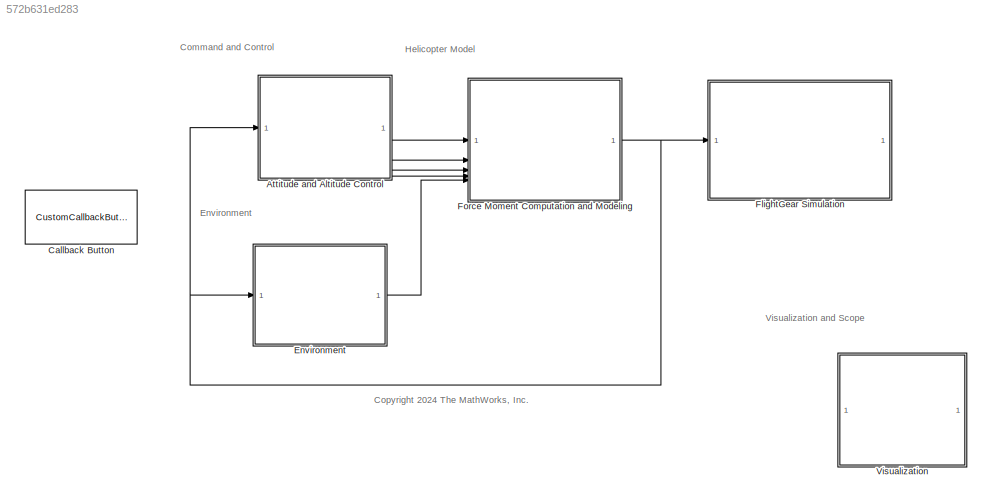
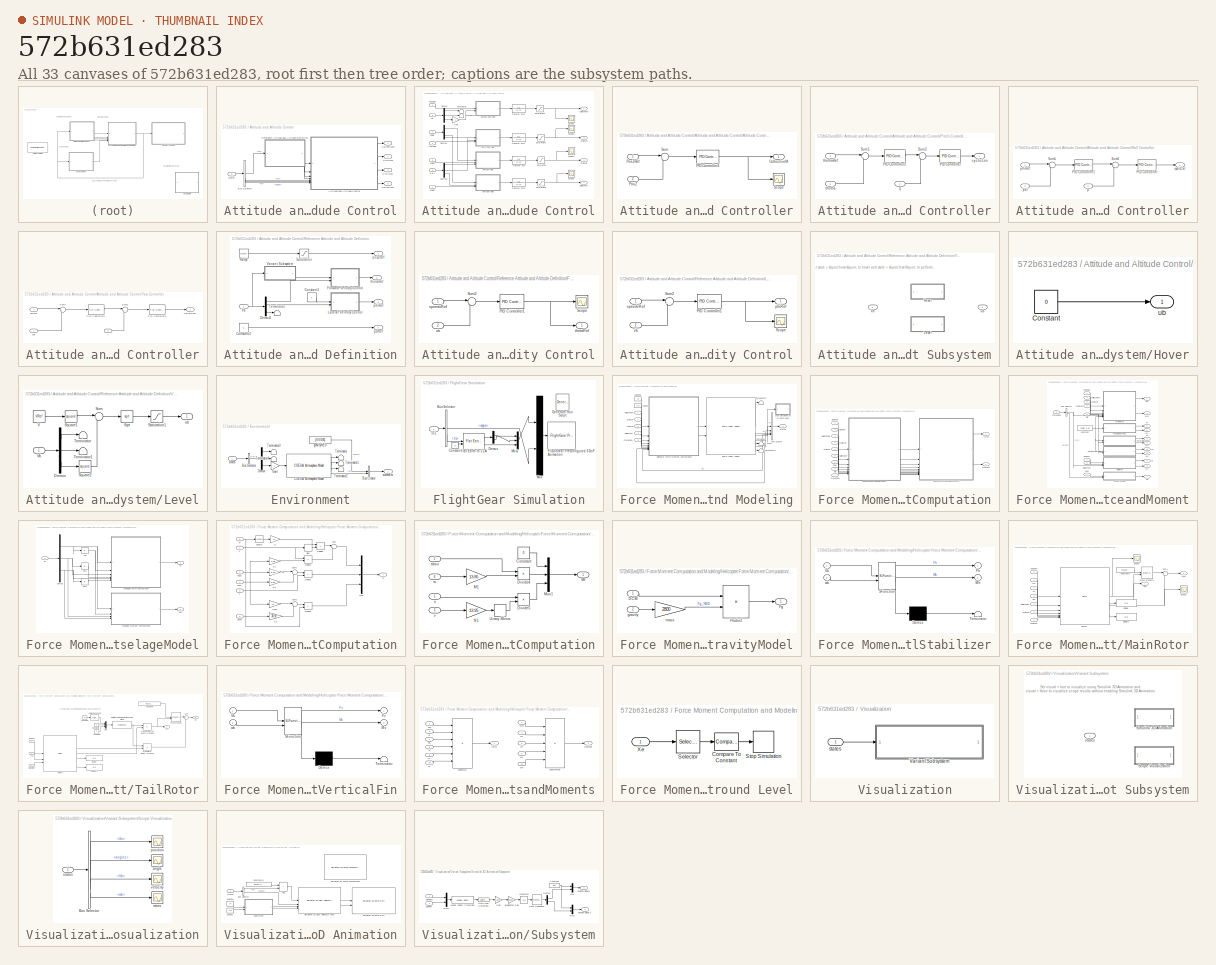
[diagram: thumbnail index - all 33 canvases of the model, root first then tree order]
MODEL slx_572b631ed283
KIND model
CONFIG AbsTol = auto
CONFIG EnableMultiTasking = off
CONFIG FixedStep = auto
CONFIG MaxStep = auto
CONFIG MinStep = auto
CONFIG RelTol = 1e-3
CONFIG SampleTimeConstraint = Unconstrained
CONFIG SolverName = VariableStepAuto
CONFIG StartFcn = L1 = 3.13;
CONFIG StartTime = 0.0
CONFIG StopTime = 100.0
BLOCK [SubSystem] Attitude and Altitude Control
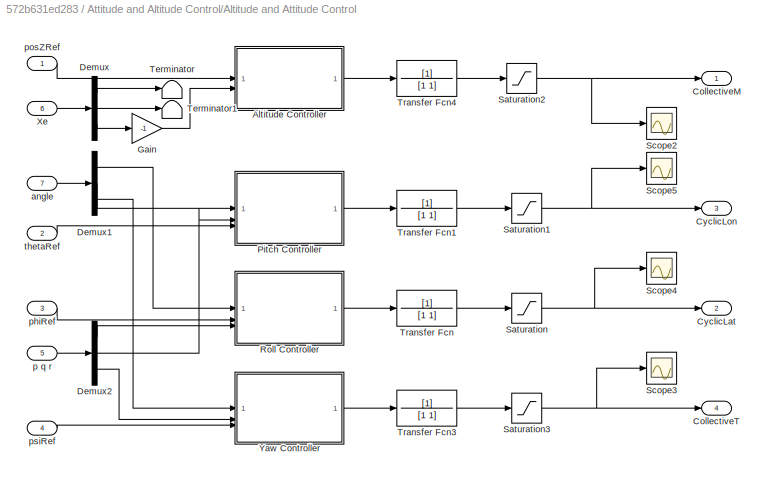
BLOCK [SubSystem] Attitude and Altitude Control/Altitude and Attitude Control
BLOCK [SubSystem] Attitude and Altitude Control/Altitude and Attitude Control/Altitude Controller
BLOCK [Outport] Attitude and Altitude Control/Altitude and Attitude Control/Altitude Controller/CollectiveM
  VectorParamsAs1DForOutWhenUnconnected = off
BLOCK [Reference] Attitude and Altitude Control/Altitude and Attitude Control/Altitude Controller/PID Controller3  REF=slpidlib/PID Controller
  SourceBlock = slpidlib/PID Controller
  SourceType = PID 1dof
BLOCK [Inport] Attitude and Altitude Control/Altitude and Attitude Control/Altitude Controller/PosZ
  Port = 2
BLOCK [Inport] Attitude and Altitude Control/Altitude and Attitude Control/Altitude Controller/PosZRef
BLOCK [Scope] Attitude and Altitude Control/Altitude and Attitude Control/Altitude Controller/Scope
  Floating = off
  NumInputPorts = 1
  ScopeSpecificationString = Simulink.scopes.TimeScopeBlockCfg('CurrentConfiguration', extmgr.ConfigurationSet(extmgr.Configuration('Core','General UI',true),extmgr.Configuration('Core','Source UI',true),extmgr.Configuration('Sources','WiredSimulink',true,'DataLoggingVariableName','ScopeData3'),extmgr.Configuration('Visuals','Time Domain',true,'SerializedDisplays',{struct('MinYLimReal','-0.025','MaxYLimReal','0.225','YLabelRe...<+1680ch>
BLOCK [Sum] Attitude and Altitude Control/Altitude and Attitude Control/Altitude Controller/Sum
  Inputs = |+-
BLOCK [Outport] Attitude and Altitude Control/Altitude and Attitude Control/CollectiveM
BLOCK [Outport] Attitude and Altitude Control/Altitude and Attitude Control/CollectiveT
  Port = 4
BLOCK [Outport] Attitude and Altitude Control/Altitude and Attitude Control/CyclicLat
  Port = 2
BLOCK [Outport] Attitude and Altitude Control/Altitude and Attitude Control/CyclicLon
  Port = 3
BLOCK [Demux] Attitude and Altitude Control/Altitude and Attitude Control/Demux
  NameLocation = top
  Outputs = 3
BLOCK [Demux] Attitude and Altitude Control/Altitude and Attitude Control/Demux1
  NameLocation = top
  Outputs = 3
BLOCK [Demux] Attitude and Altitude Control/Altitude and Attitude Control/Demux2
  NameLocation = top
  Outputs = 3
BLOCK [Gain] Attitude and Altitude Control/Altitude and Attitude Control/Gain
  Gain = -1
BLOCK [SubSystem] Attitude and Altitude Control/Altitude and Attitude Control/Pitch Controller
BLOCK [Reference] Attitude and Altitude Control/Altitude and Attitude Control/Pitch Controller/PID Controller  REF=slpidlib/PID Controller
  SourceBlock = slpidlib/PID Controller
  SourceType = PID 1dof
BLOCK [Reference] Attitude and Altitude Control/Altitude and Attitude Control/Pitch Controller/PID Controller2  REF=slpidlib/PID Controller
  SourceBlock = slpidlib/PID Controller
  SourceType = PID 1dof
BLOCK [Sum] Attitude and Altitude Control/Altitude and Attitude Control/Pitch Controller/Sum1
  Inputs = |+-
BLOCK [Sum] Attitude and Altitude Control/Altitude and Attitude Control/Pitch Controller/Sum2
  Inputs = |-+
BLOCK [Outport] Attitude and Altitude Control/Altitude and Attitude Control/Pitch Controller/cyclicLon
  VectorParamsAs1DForOutWhenUnconnected = off
BLOCK [Inport] Attitude and Altitude Control/Altitude and Attitude Control/Pitch Controller/q
  Port = 2
BLOCK [Inport] Attitude and Altitude Control/Altitude and Attitude Control/Pitch Controller/thetha
BLOCK [Inport] Attitude and Altitude Control/Altitude and Attitude Control/Pitch Controller/thethaRef
  Port = 3
BLOCK [SubSystem] Attitude and Altitude Control/Altitude and Attitude Control/Roll Controller
BLOCK [Reference] Attitude and Altitude Control/Altitude and Attitude Control/Roll Controller/PID Controller  REF=slpidlib/PID Controller
  SourceBlock = slpidlib/PID Controller
  SourceType = PID 1dof
BLOCK [Reference] Attitude and Altitude Control/Altitude and Attitude Control/Roll Controller/PID Controller1  REF=slpidlib/PID Controller
  SourceBlock = slpidlib/PID Controller
  SourceType = PID 1dof
BLOCK [Sum] Attitude and Altitude Control/Altitude and Attitude Control/Roll Controller/Sum1
  Inputs = |+-
BLOCK [Sum] Attitude and Altitude Control/Altitude and Attitude Control/Roll Controller/Sum2
  Inputs = |+-
BLOCK [Outport] Attitude and Altitude Control/Altitude and Attitude Control/Roll Controller/cyclicLat
  VectorParamsAs1DForOutWhenUnconnected = off
BLOCK [Inport] Attitude and Altitude Control/Altitude and Attitude Control/Roll Controller/p
  Port = 3
BLOCK [Inport] Attitude and Altitude Control/Altitude and Attitude Control/Roll Controller/phi
BLOCK [Inport] Attitude and Altitude Control/Altitude and Attitude Control/Roll Controller/phiRef
  Port = 2
BLOCK [Saturate] Attitude and Altitude Control/Altitude and Attitude Control/Saturation
  LowerLimit = -0.21
  UpperLimit = 0.21
BLOCK [Saturate] Attitude and Altitude Control/Altitude and Attitude Control/Saturation1
  LowerLimit = -0.21
  UpperLimit = 0.21
BLOCK [Saturate] Attitude and Altitude Control/Altitude and Attitude Control/Saturation2
  LowerLimit = 0.08
  UpperLimit = 0.15
BLOCK [Saturate] Attitude and Altitude Control/Altitude and Attitude Control/Saturation3
  LowerLimit = 0
BLOCK [Scope] Attitude and Altitude Control/Altitude and Attitude Control/Scope2
  Floating = off
  NumInputPorts = 1
  ScopeSpecificationString = Simulink.scopes.TimeScopeBlockCfg('CurrentConfiguration', extmgr.ConfigurationSet(extmgr.Configuration('Core','General UI',true),extmgr.Configuration('Core','Source UI',true),extmgr.Configuration('Sources','WiredSimulink',true,'DataLoggingVariableName','ScopeData1'),extmgr.Configuration('Visuals','Time Domain',true,'SerializedDisplays',{struct('MinYLimReal','0.07554','MaxYLimReal','0.12014','YLabe...<+1509ch>
BLOCK [Scope] Attitude and Altitude Control/Altitude and Attitude Control/Scope3
  Floating = off
  NumInputPorts = 1
  ScopeSpecificationString = Simulink.scopes.TimeScopeBlockCfg('CurrentConfiguration', extmgr.ConfigurationSet(extmgr.Configuration('Core','General UI',true),extmgr.Configuration('Core','Source UI',true),extmgr.Configuration('Sources','WiredSimulink',true,'DataLoggingVariableName','ScopeData2'),extmgr.Configuration('Visuals','Time Domain',true,'SerializedDisplays',{struct('MinYLimReal','-0.03633','MaxYLimReal','0.32698','YLab...<+1530ch>
BLOCK [Scope] Attitude and Altitude Control/Altitude and Attitude Control/Scope4
  Floating = off
  NumInputPorts = 1
  ScopeSpecificationString = Simulink.scopes.TimeScopeBlockCfg('CurrentConfiguration', extmgr.ConfigurationSet(extmgr.Configuration('Core','General UI',true),extmgr.Configuration('Core','Source UI',true),extmgr.Configuration('Sources','WiredSimulink',true,'DataLoggingVariableName','ScopeData1'),extmgr.Configuration('Visuals','Time Domain',true,'SerializedDisplays',{struct('MinYLimReal','-0.02233','MaxYLimReal','0.0758','YLabe...<+1506ch>
BLOCK [Scope] Attitude and Altitude Control/Altitude and Attitude Control/Scope5
  Floating = off
  NumInputPorts = 1
  ScopeSpecificationString = Simulink.scopes.TimeScopeBlockCfg('CurrentConfiguration', extmgr.ConfigurationSet(extmgr.Configuration('Core','General UI',true),extmgr.Configuration('Core','Source UI',true),extmgr.Configuration('Sources','WiredSimulink',true,'DataLoggingVariableName','ScopeData2'),extmgr.Configuration('Visuals','Time Domain',true,'SerializedDisplays',{struct('MinYLimReal','-0.01721','MaxYLimReal','0.02812','YLab...<+1512ch>
BLOCK [Terminator] Attitude and Altitude Control/Altitude and Attitude Control/Terminator
BLOCK [Terminator] Attitude and Altitude Control/Altitude and Attitude Control/Terminator1
BLOCK [TransferFcn] Attitude and Altitude Control/Altitude and Attitude Control/Transfer Fcn
  Denominator = [1 1]
BLOCK [TransferFcn] Attitude and Altitude Control/Altitude and Attitude Control/Transfer Fcn1
  Denominator = [1 1]
BLOCK [TransferFcn] Attitude and Altitude Control/Altitude and Attitude Control/Transfer Fcn3
  Denominator = [1 1]
BLOCK [TransferFcn] Attitude and Altitude Control/Altitude and Attitude Control/Transfer Fcn4
  Denominator = [1 1]
BLOCK [Inport] Attitude and Altitude Control/Altitude and Attitude Control/Xe
  Port = 6
BLOCK [SubSystem] Attitude and Altitude Control/Altitude and Attitude Control/Yaw Controller
BLOCK [Outport] Attitude and Altitude Control/Altitude and Attitude Control/Yaw Controller/CollectiveT
  VectorParamsAs1DForOutWhenUnconnected = off
BLOCK [Reference] Attitude and Altitude Control/Altitude and Attitude Control/Yaw Controller/PID Controller1  REF=slpidlib/PID Controller
  SourceBlock = slpidlib/PID Controller
  SourceType = PID 1dof
BLOCK [Reference] Attitude and Altitude Control/Altitude and Attitude Control/Yaw Controller/PID Controller2  REF=slpidlib/PID Controller
  SourceBlock = slpidlib/PID Controller
  SourceType = PID 1dof
BLOCK [Sum] Attitude and Altitude Control/Altitude and Attitude Control/Yaw Controller/Sum1
  Inputs = |+-
BLOCK [Sum] Attitude and Altitude Control/Altitude and Attitude Control/Yaw Controller/Sum2
  Inputs = |+-
BLOCK [Inport] Attitude and Altitude Control/Altitude and Attitude Control/Yaw Controller/psi
BLOCK [Inport] Attitude and Altitude Control/Altitude and Attitude Control/Yaw Controller/psiRef
  Port = 3
BLOCK [Inport] Attitude and Altitude Control/Altitude and Attitude Control/Yaw Controller/r
  Port = 2
BLOCK [Inport] Attitude and Altitude Control/Altitude and Attitude Control/angle
  Port = 7
BLOCK [Inport] Attitude and Altitude Control/Altitude and Attitude Control/p q r
  Port = 5
BLOCK [Inport] Attitude and Altitude Control/Altitude and Attitude Control/phiRef
  Port = 3
BLOCK [Inport] Attitude and Altitude Control/Altitude and Attitude Control/posZRef
BLOCK [Inport] Attitude and Altitude Control/Altitude and Attitude Control/psiRef
  Port = 4
BLOCK [Inport] Attitude and Altitude Control/Altitude and Attitude Control/thetaRef
  Port = 2
BLOCK [BusSelector] Attitude and Altitude Control/Bus Selector
  OutputSignals = Vb,wb,Xe,angles
BLOCK [Outport] Attitude and Altitude Control/CollectiveM
BLOCK [Outport] Attitude and Altitude Control/CollectiveT
  Port = 4
BLOCK [Outport] Attitude and Altitude Control/CyclicLat
  Port = 2
BLOCK [Outport] Attitude and Altitude Control/CyclicLon
  Port = 3
BLOCK [SubSystem] Attitude and Altitude Control/Reference Atttiude and Altitude Definition
  NameLocation = top
BLOCK [Constant] Attitude and Altitude Control/Reference Atttiude and Altitude Definition/Constant1
  Value = 0
BLOCK [Constant] Attitude and Altitude Control/Reference Atttiude and Altitude Definition/Constant2
  Value = 0
BLOCK [Demux] Attitude and Altitude Control/Reference Atttiude and Altitude Definition/Demux3
  NameLocation = top
  Outputs = 3
BLOCK [SubSystem] Attitude and Altitude Control/Reference Atttiude and Altitude Definition/Forward Velocity Control
BLOCK [Reference] Attitude and Altitude Control/Reference Atttiude and Altitude Definition/Forward Velocity Control/PID Controller1  REF=slpidlib/PID Controller
  SourceBlock = slpidlib/PID Controller
  SourceType = PID 1dof
BLOCK [Scope] Attitude and Altitude Control/Reference Atttiude and Altitude Definition/Forward Velocity Control/Scope
  Floating = off
  NumInputPorts = 1
  ScopeSpecificationString = Simulink.scopes.TimeScopeBlockCfg('CurrentConfiguration', extmgr.ConfigurationSet(extmgr.Configuration('Core','General UI',true),extmgr.Configuration('Core','Source UI',true),extmgr.Configuration('Sources','WiredSimulink',true,'DataLoggingVariableName','ScopeData2'),extmgr.Configuration('Visuals','Time Domain',true,'SerializedDisplays',{struct('MinYLimReal','-0.4375','MaxYLimReal','0.4375','YLabel...<+1529ch>
BLOCK [Sum] Attitude and Altitude Control/Reference Atttiude and Altitude Definition/Forward Velocity Control/Sum2
  Inputs = |-+
BLOCK [Inport] Attitude and Altitude Control/Reference Atttiude and Altitude Definition/Forward Velocity Control/speeduRef
BLOCK [Outport] Attitude and Altitude Control/Reference Atttiude and Altitude Definition/Forward Velocity Control/thetaRef
BLOCK [Inport] Attitude and Altitude Control/Reference Atttiude and Altitude Definition/Forward Velocity Control/ub
  Port = 2
BLOCK [SubSystem] Attitude and Altitude Control/Reference Atttiude and Altitude Definition/Lateral Velocity Control
BLOCK [Reference] Attitude and Altitude Control/Reference Atttiude and Altitude Definition/Lateral Velocity Control/PID Controller1  REF=slpidlib/PID Controller
  SourceBlock = slpidlib/PID Controller
  SourceType = PID 1dof
BLOCK [Scope] Attitude and Altitude Control/Reference Atttiude and Altitude Definition/Lateral Velocity Control/Scope
  Floating = off
  NumInputPorts = 1
  ScopeSpecificationString = Simulink.scopes.TimeScopeBlockCfg('CurrentConfiguration', extmgr.ConfigurationSet(extmgr.Configuration('Core','General UI',true),extmgr.Configuration('Core','Source UI',true),extmgr.Configuration('Sources','WiredSimulink',true,'DataLoggingVariableName','ScopeData2'),extmgr.Configuration('Visuals','Time Domain',true,'SerializedDisplays',{struct('MinYLimReal','-0.4375','MaxYLimReal','0.4375','YLabel...<+1528ch>
BLOCK [Sum] Attitude and Altitude Control/Reference Atttiude and Altitude Definition/Lateral Velocity Control/Sum2
  Inputs = |+-
BLOCK [Outport] Attitude and Altitude Control/Reference Atttiude and Altitude Definition/Lateral Velocity Control/phiRef
BLOCK [Inport] Attitude and Altitude Control/Reference Atttiude and Altitude Definition/Lateral Velocity Control/speedvRef
BLOCK [Inport] Attitude and Altitude Control/Reference Atttiude and Altitude Definition/Lateral Velocity Control/vb
  Port = 2
BLOCK [Reference] Attitude and Altitude Control/Reference Atttiude and Altitude Definition/Ramp  REF=simulink/Sources/Ramp
  SourceBlock = simulink/Sources/Ramp
  SourceType = Ramp
BLOCK [Saturate] Attitude and Altitude Control/Reference Atttiude and Altitude Definition/Saturation
  LowerLimit = 0
  UpperLimit = hRef
BLOCK [Terminator] Attitude and Altitude Control/Reference Atttiude and Altitude Definition/Terminator
BLOCK [SubSystem] Attitude and Altitude Control/Reference Atttiude and Altitude Definition/Variant Subsystem
  Variant = on
BLOCK [SubSystem] Attitude and Altitude Control/Reference Atttiude and Altitude Definition/Variant Subsystem/Hover
  VariantControl = state == "hover"
BLOCK [Constant] Attitude and Altitude Control/Reference Atttiude and Altitude Definition/Variant Subsystem/Hover/Constant
  Value = 0
BLOCK [Outport] Attitude and Altitude Control/Reference Atttiude and Altitude Definition/Variant Subsystem/Hover/ub
BLOCK [SubSystem] Attitude and Altitude Control/Reference Atttiude and Altitude Definition/Variant Subsystem/Level
  VariantControl = state == "level"
BLOCK [Demux] Attitude and Altitude Control/Reference Atttiude and Altitude Definition/Variant Subsystem/Level/Demux
  Outputs = 3
BLOCK [Saturate] Attitude and Altitude Control/Reference Atttiude and Altitude Definition/Variant Subsystem/Level/Saturation1
  LowerLimit = 0
  UpperLimit = 65
BLOCK [Sqrt] Attitude and Altitude Control/Reference Atttiude and Altitude Definition/Variant Subsystem/Level/Sqrt
BLOCK [Math] Attitude and Altitude Control/Reference Atttiude and Altitude Definition/Variant Subsystem/Level/Square1
  Operator = square
BLOCK [Math] Attitude and Altitude Control/Reference Atttiude and Altitude Definition/Variant Subsystem/Level/Square2
  Operator = square
BLOCK [Sum] Attitude and Altitude Control/Reference Atttiude and Altitude Definition/Variant Subsystem/Level/Sum
  Inputs = |+-
BLOCK [Terminator] Attitude and Altitude Control/Reference Atttiude and Altitude Definition/Variant Subsystem/Level/Terminator
BLOCK [Terminator] Attitude and Altitude Control/Reference Atttiude and Altitude Definition/Variant Subsystem/Level/Terminator1
BLOCK [Constant] Attitude and Altitude Control/Reference Atttiude and Altitude Definition/Variant Subsystem/Level/V
  Value = VRef
BLOCK [Inport] Attitude and Altitude Control/Reference Atttiude and Altitude Definition/Variant Subsystem/Level/Vb
BLOCK [Outport] Attitude and Altitude Control/Reference Atttiude and Altitude Definition/Variant Subsystem/Level/ub
BLOCK [Inport] Attitude and Altitude Control/Reference Atttiude and Altitude Definition/Variant Subsystem/Vb
BLOCK [Outport] Attitude and Altitude Control/Reference Atttiude and Altitude Definition/Variant Subsystem/ub
BLOCK [Inport] Attitude and Altitude Control/Reference Atttiude and Altitude Definition/Vb
BLOCK [Outport] Attitude and Altitude Control/Reference Atttiude and Altitude Definition/phiRef
  Port = 3
BLOCK [Outport] Attitude and Altitude Control/Reference Atttiude and Altitude Definition/posZRef
BLOCK [Outport] Attitude and Altitude Control/Reference Atttiude and Altitude Definition/psiRef
  Port = 4
BLOCK [Outport] Attitude and Altitude Control/Reference Atttiude and Altitude Definition/thetaRef
  Port = 2
BLOCK [Inport] Attitude and Altitude Control/states
BLOCK [CustomCallbackButton] Callback Button
  Configuration = {"components":[{"name":"BackgroundImageComponent","settings":{"image":{"size":[0,0],"src":"default","srcOrientation":"Right"},"position":[0,0,1,1]}},{"name":"ButtonStateComponent","settings":{"buttonType":"momentary","clickFcn":"run(\"HelicopterParameterEstimation.mlapp\");","onValue":1,"position":[0,0,1,1],"pressDelay":"500","pressFcn":"","repeatInterval":"0","states":[{"horizontalAlignment":"cen...<+2128ch>
  CustomBackgroundColor = {"color":[0.9568627451,0.9568627451,0.9568627451],"show":true}
BLOCK [SubSystem] Environment
BLOCK [BusCreator] Environment/Bus Creator
  DisplayOption = bar
  InheritFromInputs = on
  Inputs = gravity,rho
BLOCK [BusSelector] Environment/Bus Selector
  OutputSignals = Xe
BLOCK [Reference] Environment/COESA Atmosphere Model  REF=aerolibatmos2/COESA Atmosphere Model
  SourceBlock = aerolibatmos2/COESA Atmosphere Model
  SourceType = Atmosphere Model
BLOCK [Demux] Environment/Demux
  Outputs = 3
BLOCK [Gain] Environment/Gain
  Gain = -1
BLOCK [Terminator] Environment/Terminator
BLOCK [Terminator] Environment/Terminator1
BLOCK [Terminator] Environment/Terminator2
BLOCK [Terminator] Environment/Terminator3
BLOCK [Terminator] Environment/Terminator4
BLOCK [Constant] Environment/gravityNED
  Value = [0 0 9.81]
BLOCK [Inport] Environment/states
BLOCK [Outport] Environment/statesEnv
BLOCK [SubSystem] FlightGear Simulation
BLOCK [BusSelector] FlightGear Simulation/Bus Selector
  OutputSignals = angles,Xe
BLOCK [Constant] FlightGear Simulation/Constant
  Value = 0
BLOCK [Demux] FlightGear Simulation/Demux
  Outputs = 2
BLOCK [Reference] FlightGear Simulation/Flat Earth to LLA  REF=aerolibtransform2/Flat Earth to LLA
  SourceBlock = aerolibtransform2/Flat Earth to LLA
  SourceType = Flat Earth to LLA
BLOCK [Reference] FlightGear Simulation/FlightGear Preconfigured 6DoF Animation  REF=aerolibfltsims/FlightGear
Preconfigured
6DoF Animation
  SourceBlock = aerolibfltsims/FlightGear\nPreconfigured\n6DoF Animation
  SourceType = FlightGearQuick6DoFAnimation
BLOCK [Reference] FlightGear Simulation/Generate Run Script  REF=aerolibfltsims/Generate
Run Script
  SourceBlock = aerolibfltsims/Generate\nRun Script
  SourceType = Generate FlightGear Run Script
BLOCK [Inport] FlightGear Simulation/In1
BLOCK [Mux] FlightGear Simulation/Mux
  DisplayOption = bar
  Inputs = 2
BLOCK [Mux] FlightGear Simulation/Mux1
  DisplayOption = bar
  Inputs = 3
BLOCK [SubSystem] Force Moment Computation and Modeling
BLOCK [Reference] Force Moment Computation and Modeling/6DOF (Euler Angles)  REF=shared6dof/6DOF (Euler Angles)
  NameLocation = top
  SourceBlock = shared6dof/6DOF (Euler Angles)
  SourceType = 6DOF EoM (Body Axis)
BLOCK [BusCreator] Force Moment Computation and Modeling/Bus Creator
  DisplayOption = bar
  InheritFromInputs = on
  Inputs = 4
BLOCK [Inport] Force Moment Computation and Modeling/CollectiveM
  NameLocation = left
BLOCK [Inport] Force Moment Computation and Modeling/CollectiveT
  NameLocation = left
  Port = 4
BLOCK [Inport] Force Moment Computation and Modeling/CyclicLat
  NameLocation = left
  Port = 2
BLOCK [Inport] Force Moment Computation and Modeling/CyclicLon
  NameLocation = left
  Port = 3
BLOCK [SubSystem] Force Moment Computation and Modeling/Helicopter Force Moment Computation
  NameLocation = top
BLOCK [Inport] Force Moment Computation and Modeling/Helicopter Force Moment Computation/CollectiveM
  Port = 3
BLOCK [Inport] Force Moment Computation and Modeling/Helicopter Force Moment Computation/CollectiveT
  Port = 6
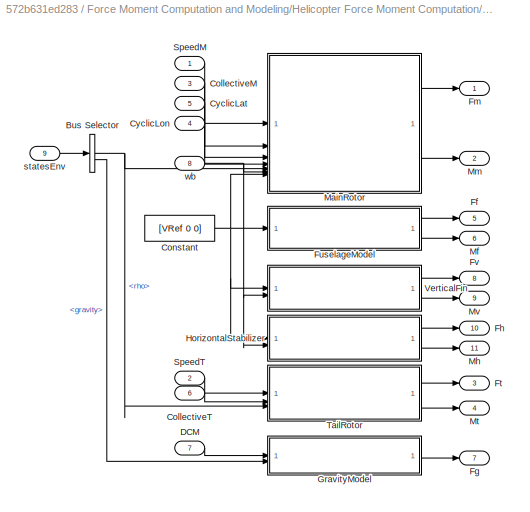
BLOCK [SubSystem] Force Moment Computation and Modeling/Helicopter Force Moment Computation/ComputeForceandMoment
BLOCK [BusSelector] Force Moment Computation and Modeling/Helicopter Force Moment Computation/ComputeForceandMoment/Bus Selector
  OutputSignals = rho,gravity
BLOCK [Inport] Force Moment Computation and Modeling/Helicopter Force Moment Computation/ComputeForceandMoment/CollectiveM
  Port = 3
BLOCK [Inport] Force Moment Computation and Modeling/Helicopter Force Moment Computation/ComputeForceandMoment/CollectiveT
  Port = 6
BLOCK [Constant] Force Moment Computation and Modeling/Helicopter Force Moment Computation/ComputeForceandMoment/Constant
  NameLocation = left
  Value = [VRef 0 0]
BLOCK [Inport] Force Moment Computation and Modeling/Helicopter Force Moment Computation/ComputeForceandMoment/CyclicLat
  Port = 5
BLOCK [Inport] Force Moment Computation and Modeling/Helicopter Force Moment Computation/ComputeForceandMoment/CyclicLon
  Port = 4
BLOCK [Inport] Force Moment Computation and Modeling/Helicopter Force Moment Computation/ComputeForceandMoment/DCM
  Port = 7
BLOCK [Outport] Force Moment Computation and Modeling/Helicopter Force Moment Computation/ComputeForceandMoment/Ff
  NameLocation = top
  Port = 5
BLOCK [Outport] Force Moment Computation and Modeling/Helicopter Force Moment Computation/ComputeForceandMoment/Fg
  Port = 7
BLOCK [Outport] Force Moment Computation and Modeling/Helicopter Force Moment Computation/ComputeForceandMoment/Fh
  NameLocation = top
  Port = 10
BLOCK [Outport] Force Moment Computation and Modeling/Helicopter Force Moment Computation/ComputeForceandMoment/Fm
BLOCK [Outport] Force Moment Computation and Modeling/Helicopter Force Moment Computation/ComputeForceandMoment/Ft
  NameLocation = top
  Port = 3
BLOCK [SubSystem] Force Moment Computation and Modeling/Helicopter Force Moment Computation/ComputeForceandMoment/FuselageModel
BLOCK [Abs] Force Moment Computation and Modeling/Helicopter Force Moment Computation/ComputeForceandMoment/FuselageModel/Abs
  SaturateOnIntegerOverflow = off
BLOCK [Abs] Force Moment Computation and Modeling/Helicopter Force Moment Computation/ComputeForceandMoment/FuselageModel/Abs1
  SaturateOnIntegerOverflow = off
BLOCK [Abs] Force Moment Computation and Modeling/Helicopter Force Moment Computation/ComputeForceandMoment/FuselageModel/Abs2
  SaturateOnIntegerOverflow = off
BLOCK [Demux] Force Moment Computation and Modeling/Helicopter Force Moment Computation/ComputeForceandMoment/FuselageModel/Demux
  Outputs = 3
BLOCK [Outport] Force Moment Computation and Modeling/Helicopter Force Moment Computation/ComputeForceandMoment/FuselageModel/Ff
BLOCK [SubSystem] Force Moment Computation and Modeling/Helicopter Force Moment Computation/ComputeForceandMoment/FuselageModel/Fuselage Force Computation
BLOCK [Gain] Force Moment Computation and Modeling/Helicopter Force Moment Computation/ComputeForceandMoment/FuselageModel/Fuselage Force Computation/D1
  Gain = 1.05
BLOCK [Gain] Force Moment Computation and Modeling/Helicopter Force Moment Computation/ComputeForceandMoment/FuselageModel/Fuselage Force Computation/D2
  Gain = 9.62
BLOCK [Gain] Force Moment Computation and Modeling/Helicopter Force Moment Computation/ComputeForceandMoment/FuselageModel/Fuselage Force Computation/D3
  Gain = 30.92
BLOCK [Product] Force Moment Computation and Modeling/Helicopter Force Moment Computation/ComputeForceandMoment/FuselageModel/Fuselage Force Computation/Divide1
  Inputs = **
BLOCK [Product] Force Moment Computation and Modeling/Helicopter Force Moment Computation/ComputeForceandMoment/FuselageModel/Fuselage Force Computation/Divide2
  Inputs = **
BLOCK [Product] Force Moment Computation and Modeling/Helicopter Force Moment Computation/ComputeForceandMoment/FuselageModel/Fuselage Force Computation/Divide3
  Inputs = **
BLOCK [Product] Force Moment Computation and Modeling/Helicopter Force Moment Computation/ComputeForceandMoment/FuselageModel/Fuselage Force Computation/Divide6
  Inputs = **
BLOCK [Outport] Force Moment Computation and Modeling/Helicopter Force Moment Computation/ComputeForceandMoment/FuselageModel/Fuselage Force Computation/Ff
BLOCK [Gain] Force Moment Computation and Modeling/Helicopter Force Moment Computation/ComputeForceandMoment/FuselageModel/Fuselage Force Computation/L1
  Gain = L1
BLOCK [Gain] Force Moment Computation and Modeling/Helicopter Force Moment Computation/ComputeForceandMoment/FuselageModel/Fuselage Force Computation/L1def
  Gain = L1
BLOCK [Mux] Force Moment Computation and Modeling/Helicopter Force Moment Computation/ComputeForceandMoment/FuselageModel/Fuselage Force Computation/Mux
  DisplayOption = bar
  Inputs = 3
BLOCK [Signum] Force Moment Computation and Modeling/Helicopter Force Moment Computation/ComputeForceandMoment/FuselageModel/Fuselage Force Computation/Sign
BLOCK [Math] Force Moment Computation and Modeling/Helicopter Force Moment Computation/ComputeForceandMoment/FuselageModel/Fuselage Force Computation/Square
  Operator = square
BLOCK [Sum] Force Moment Computation and Modeling/Helicopter Force Moment Computation/ComputeForceandMoment/FuselageModel/Fuselage Force Computation/Sum
  Inputs = |+-
BLOCK [Sum] Force Moment Computation and Modeling/Helicopter Force Moment Computation/ComputeForceandMoment/FuselageModel/Fuselage Force Computation/Sum1
  Inputs = |--
BLOCK [Sum] Force Moment Computation and Modeling/Helicopter Force Moment Computation/ComputeForceandMoment/FuselageModel/Fuselage Force Computation/Sum2
  Inputs = |--
BLOCK [Gain] Force Moment Computation and Modeling/Helicopter Force Moment Computation/ComputeForceandMoment/FuselageModel/Fuselage Force Computation/Y1
  Gain = 3.13
BLOCK [Inport] Force Moment Computation and Modeling/Helicopter Force Moment Computation/ComputeForceandMoment/FuselageModel/Fuselage Force Computation/absu
  Port = 2
BLOCK [Inport] Force Moment Computation and Modeling/Helicopter Force Moment Computation/ComputeForceandMoment/FuselageModel/Fuselage Force Computation/absv
  Port = 4
BLOCK [Inport] Force Moment Computation and Modeling/Helicopter Force Moment Computation/ComputeForceandMoment/FuselageModel/Fuselage Force Computation/absw
  Port = 6
BLOCK [Inport] Force Moment Computation and Modeling/Helicopter Force Moment Computation/ComputeForceandMoment/FuselageModel/Fuselage Force Computation/u
BLOCK [Inport] Force Moment Computation and Modeling/Helicopter Force Moment Computation/ComputeForceandMoment/FuselageModel/Fuselage Force Computation/v
  Port = 3
BLOCK [Inport] Force Moment Computation and Modeling/Helicopter Force Moment Computation/ComputeForceandMoment/FuselageModel/Fuselage Force Computation/w
  Port = 5
BLOCK [SubSystem] Force Moment Computation and Modeling/Helicopter Force Moment Computation/ComputeForceandMoment/FuselageModel/Fuselage Moment Computation
BLOCK [Constant] Force Moment Computation and Modeling/Helicopter Force Moment Computation/ComputeForceandMoment/FuselageModel/Fuselage Moment Computation/Constant
  Value = 0
BLOCK [Product] Force Moment Computation and Modeling/Helicopter Force Moment Computation/ComputeForceandMoment/FuselageModel/Fuselage Moment Computation/Divide4
  Inputs = **
BLOCK [Product] Force Moment Computation and Modeling/Helicopter Force Moment Computation/ComputeForceandMoment/FuselageModel/Fuselage Moment Computation/Divide5
  Inputs = **
BLOCK [Gain] Force Moment Computation and Modeling/Helicopter Force Moment Computation/ComputeForceandMoment/FuselageModel/Fuselage Moment Computation/M1
  Gain = 13.95
BLOCK [Outport] Force Moment Computation and Modeling/Helicopter Force Moment Computation/ComputeForceandMoment/FuselageModel/Fuselage Moment Computation/Mf
BLOCK [Mux] Force Moment Computation and Modeling/Helicopter Force Moment Computation/ComputeForceandMoment/FuselageModel/Fuselage Moment Computation/Mux1
  DisplayOption = bar
  Inputs = 3
BLOCK [Gain] Force Moment Computation and Modeling/Helicopter Force Moment Computation/ComputeForceandMoment/FuselageModel/Fuselage Moment Computation/N1
  Gain = 13.95
BLOCK [UnaryMinus] Force Moment Computation and Modeling/Helicopter Force Moment Computation/ComputeForceandMoment/FuselageModel/Fuselage Moment Computation/Unary Minus
BLOCK [Inport] Force Moment Computation and Modeling/Helicopter Force Moment Computation/ComputeForceandMoment/FuselageModel/Fuselage Moment Computation/absu
  Port = 2
BLOCK [Inport] Force Moment Computation and Modeling/Helicopter Force Moment Computation/ComputeForceandMoment/FuselageModel/Fuselage Moment Computation/u
BLOCK [Inport] Force Moment Computation and Modeling/Helicopter Force Moment Computation/ComputeForceandMoment/FuselageModel/Fuselage Moment Computation/v
  Port = 3
BLOCK [Inport] Force Moment Computation and Modeling/Helicopter Force Moment Computation/ComputeForceandMoment/FuselageModel/Fuselage Moment Computation/w
  Port = 4
BLOCK [Outport] Force Moment Computation and Modeling/Helicopter Force Moment Computation/ComputeForceandMoment/FuselageModel/Mf
  Port = 2
BLOCK [Inport] Force Moment Computation and Modeling/Helicopter Force Moment Computation/ComputeForceandMoment/FuselageModel/Vb
BLOCK [Outport] Force Moment Computation and Modeling/Helicopter Force Moment Computation/ComputeForceandMoment/Fv
  NameLocation = top
  Port = 8
BLOCK [SubSystem] Force Moment Computation and Modeling/Helicopter Force Moment Computation/ComputeForceandMoment/GravityModel
BLOCK [Inport] Force Moment Computation and Modeling/Helicopter Force Moment Computation/ComputeForceandMoment/GravityModel/DCM
BLOCK [Outport] Force Moment Computation and Modeling/Helicopter Force Moment Computation/ComputeForceandMoment/GravityModel/Fg
BLOCK [Product] Force Moment Computation and Modeling/Helicopter Force Moment Computation/ComputeForceandMoment/GravityModel/Product
  Multiplication = Matrix(*)
BLOCK [Inport] Force Moment Computation and Modeling/Helicopter Force Moment Computation/ComputeForceandMoment/GravityModel/gravity
  Port = 2
BLOCK [Gain] Force Moment Computation and Modeling/Helicopter Force Moment Computation/ComputeForceandMoment/GravityModel/mass
  Gain = 2800
BLOCK [SubSystem] Force Moment Computation and Modeling/Helicopter Force Moment Computation/ComputeForceandMoment/HorizontalStabilizer
  ErrorFcn = Stateflow.Translate.translate
  PermitHierarchicalResolution = ExplicitOnly
  SFBlockType = MATLAB Function
  TreatAsAtomicUnit = on
BLOCK [Demux] Force Moment Computation and Modeling/Helicopter Force Moment Computation/ComputeForceandMoment/HorizontalStabilizer/ Demux 
  Outputs = 1
BLOCK [S-Function] Force Moment Computation and Modeling/Helicopter Force Moment Computation/ComputeForceandMoment/HorizontalStabilizer/ SFunction 
  EnableBusSupport = on
  FunctionName = sf_sfun
  PortCounts = [2 3]
  SFcnIsStateOwnerBlock = off
  SFunctionDeploymentMode = off
  Tag = Stateflow S-Function 6
BLOCK [Terminator] Force Moment Computation and Modeling/Helicopter Force Moment Computation/ComputeForceandMoment/HorizontalStabilizer/ Terminator 
BLOCK [Outport] Force Moment Computation and Modeling/Helicopter Force Moment Computation/ComputeForceandMoment/HorizontalStabilizer/Fh
BLOCK [Outport] Force Moment Computation and Modeling/Helicopter Force Moment Computation/ComputeForceandMoment/HorizontalStabilizer/Mh
  Port = 2
BLOCK [Inport] Force Moment Computation and Modeling/Helicopter Force Moment Computation/ComputeForceandMoment/HorizontalStabilizer/Vb
BLOCK [Inport] Force Moment Computation and Modeling/Helicopter Force Moment Computation/ComputeForceandMoment/HorizontalStabilizer/wb
  Port = 2
BLOCK [SubSystem] Force Moment Computation and Modeling/Helicopter Force Moment Computation/ComputeForceandMoment/MainRotor
BLOCK [Inport] Force Moment Computation and Modeling/Helicopter Force Moment Computation/ComputeForceandMoment/MainRotor/CollectiveM
  Port = 2
BLOCK [Constant] Force Moment Computation and Modeling/Helicopter Force Moment Computation/ComputeForceandMoment/MainRotor/Constant8
  Value = [-0.165 0 -2.07]
  VectorParams1D = off
BLOCK [Reference] Force Moment Computation and Modeling/Helicopter Force Moment Computation/ComputeForceandMoment/MainRotor/Cross Product1  REF=matrix_library/Cross Product
  SourceBlock = matrix_library/Cross Product
  SourceType = CrossProduct
BLOCK [Inport] Force Moment Computation and Modeling/Helicopter Force Moment Computation/ComputeForceandMoment/MainRotor/CyclicLat
  Port = 3
BLOCK [Inport] Force Moment Computation and Modeling/Helicopter Force Moment Computation/ComputeForceandMoment/MainRotor/CyclicLon
  Port = 4
BLOCK [Display] Force Moment Computation and Modeling/Helicopter Force Moment Computation/ComputeForceandMoment/MainRotor/Display
  Decimation = 1
BLOCK [Display] Force Moment Computation and Modeling/Helicopter Force Moment Computation/ComputeForceandMoment/MainRotor/Display1
  Decimation = 1
BLOCK [Outport] Force Moment Computation and Modeling/Helicopter Force Moment Computation/ComputeForceandMoment/MainRotor/Fm
BLOCK [Outport] Force Moment Computation and Modeling/Helicopter Force Moment Computation/ComputeForceandMoment/MainRotor/Mm
  Port = 2
BLOCK [Rotor] Force Moment Computation and Modeling/Helicopter Force Moment Computation/ComputeForceandMoment/MainRotor/Rotor1
  CQ = 24e-5
  CT = 0.0042
  CTCQMode = Compute using BEMT
  CTout = on
  cd0 = 0.009
  chord = 0.53
  controlInput = on
  gamma = 10
  modelMode = With flap effects
  radius = 7.35
  thetaRoot = 0.1493
  thetaTwist = -0.1745
BLOCK [Scope] Force Moment Computation and Modeling/Helicopter Force Moment Computation/ComputeForceandMoment/MainRotor/Scope
  Floating = off
  NumInputPorts = 1
  ScopeSpecificationString = Simulink.scopes.TimeScopeBlockCfg('CurrentConfiguration', extmgr.ConfigurationSet(extmgr.Configuration('Core','General UI',true),extmgr.Configuration('Core','Source UI',true),extmgr.Configuration('Sources','WiredSimulink',true,'DataLoggingVariableName','ScopeData1'),extmgr.Configuration('Visuals','Time Domain',true,'SerializedDisplays',{struct('MinYLimReal','-37695.51991','MaxYLimReal','5085.20467...<+1558ch>
BLOCK [Scope] Force Moment Computation and Modeling/Helicopter Force Moment Computation/ComputeForceandMoment/MainRotor/Scope2
  Floating = off
  NumInputPorts = 1
  ScopeSpecificationString = Simulink.scopes.TimeScopeBlockCfg('CurrentConfiguration', extmgr.ConfigurationSet(extmgr.Configuration('Core','General UI',true),extmgr.Configuration('Core','Source UI',true),extmgr.Configuration('Sources','WiredSimulink',true,'DataLoggingVariableName','ScopeData6'),extmgr.Configuration('Visuals','Time Domain',true,'SerializedDisplays',{struct('MinYLimReal','-14955.89075','MaxYLimReal','-8582.7115...<+1710ch>
BLOCK [Inport] Force Moment Computation and Modeling/Helicopter Force Moment Computation/ComputeForceandMoment/MainRotor/SpeedM
BLOCK [Sum] Force Moment Computation and Modeling/Helicopter Force Moment Computation/ComputeForceandMoment/MainRotor/Sum1
  Inputs = |++
BLOCK [Inport] Force Moment Computation and Modeling/Helicopter Force Moment Computation/ComputeForceandMoment/MainRotor/Vb
  Port = 7
BLOCK [Inport] Force Moment Computation and Modeling/Helicopter Force Moment Computation/ComputeForceandMoment/MainRotor/rho
  Port = 5
BLOCK [Inport] Force Moment Computation and Modeling/Helicopter Force Moment Computation/ComputeForceandMoment/MainRotor/wb
  Port = 6
BLOCK [Outport] Force Moment Computation and Modeling/Helicopter Force Moment Computation/ComputeForceandMoment/Mf
  Port = 6
BLOCK [Outport] Force Moment Computation and Modeling/Helicopter Force Moment Computation/ComputeForceandMoment/Mh
  Port = 11
BLOCK [Outport] Force Moment Computation and Modeling/Helicopter Force Moment Computation/ComputeForceandMoment/Mm
  Port = 2
BLOCK [Outport] Force Moment Computation and Modeling/Helicopter Force Moment Computation/ComputeForceandMoment/Mt
  Port = 4
BLOCK [Outport] Force Moment Computation and Modeling/Helicopter Force Moment Computation/ComputeForceandMoment/Mv
  Port = 9
BLOCK [Inport] Force Moment Computation and Modeling/Helicopter Force Moment Computation/ComputeForceandMoment/SpeedM
BLOCK [Inport] Force Moment Computation and Modeling/Helicopter Force Moment Computation/ComputeForceandMoment/SpeedT
  Port = 2
BLOCK [SubSystem] Force Moment Computation and Modeling/Helicopter Force Moment Computation/ComputeForceandMoment/TailRotor
BLOCK [Reference] Force Moment Computation and Modeling/Helicopter Force Moment Computation/ComputeForceandMoment/TailRotor/Angle Conversion  REF=aerolibconvert2/Angle Conversion
  SourceBlock = aerolibconvert2/Angle Conversion
  SourceType = Angle Conversion
BLOCK [Inport] Force Moment Computation and Modeling/Helicopter Force Moment Computation/ComputeForceandMoment/TailRotor/CollectiveT
  Port = 2
BLOCK [Constant] Force Moment Computation and Modeling/Helicopter Force Moment Computation/ComputeForceandMoment/TailRotor/Constant1
  Value = 0
BLOCK [Constant] Force Moment Computation and Modeling/Helicopter Force Moment Computation/ComputeForceandMoment/TailRotor/Constant2
  Value = 0
BLOCK [Constant] Force Moment Computation and Modeling/Helicopter Force Moment Computation/ComputeForceandMoment/TailRotor/Constant3
  Value = 90
BLOCK [Constant] Force Moment Computation and Modeling/Helicopter Force Moment Computation/ComputeForceandMoment/TailRotor/Constant7
  Value = [-8.53 0 -2.10]
  VectorParams1D = off
BLOCK [Reference] Force Moment Computation and Modeling/Helicopter Force Moment Computation/ComputeForceandMoment/TailRotor/Cross Product  REF=matrix_library/Cross Product
  SourceBlock = matrix_library/Cross Product
  SourceType = CrossProduct
BLOCK [Display] Force Moment Computation and Modeling/Helicopter Force Moment Computation/ComputeForceandMoment/TailRotor/Display
  Decimation = 1
BLOCK [Display] Force Moment Computation and Modeling/Helicopter Force Moment Computation/ComputeForceandMoment/TailRotor/Display1
  Decimation = 1
BLOCK [Outport] Force Moment Computation and Modeling/Helicopter Force Moment Computation/ComputeForceandMoment/TailRotor/Ft
BLOCK [Outport] Force Moment Computation and Modeling/Helicopter Force Moment Computation/ComputeForceandMoment/TailRotor/Mt
  Port = 2
BLOCK [Mux] Force Moment Computation and Modeling/Helicopter Force Moment Computation/ComputeForceandMoment/TailRotor/Mux
  DisplayOption = bar
  Inputs = 3
BLOCK [Angle2Dcm] Force Moment Computation and Modeling/Helicopter Force Moment Computation/ComputeForceandMoment/TailRotor/Rotation Angles to Direction Cosine Matrix
  AttributesFormatString = Rotation Order: %<rotationOrder>
  rotationOrder = XYZ
BLOCK [Rotor] Force Moment Computation and Modeling/Helicopter Force Moment Computation/ComputeForceandMoment/TailRotor/Rotor6
  CTCQMode = Compute using BEMT
  CTout = on
  cd0 = 0.002
  chord = 0.2133
  controlInput = on
  radius = 1.29
  thetaRoot = 0.015
  thetaTwist = 0
BLOCK [Inport] Force Moment Computation and Modeling/Helicopter Force Moment Computation/ComputeForceandMoment/TailRotor/SpeedT
BLOCK [Sum] Force Moment Computation and Modeling/Helicopter Force Moment Computation/ComputeForceandMoment/TailRotor/Sum
  Inputs = |++
BLOCK [Product] Force Moment Computation and Modeling/Helicopter Force Moment Computation/ComputeForceandMoment/TailRotor/Transform forces about x-axis by 90 deg 
  Multiplication = Matrix(*)
BLOCK [Product] Force Moment Computation and Modeling/Helicopter Force Moment Computation/ComputeForceandMoment/TailRotor/Transform moments about x-axis by 90 deg
  Multiplication = Matrix(*)
BLOCK [Inport] Force Moment Computation and Modeling/Helicopter Force Moment Computation/ComputeForceandMoment/TailRotor/rho
  Port = 3
BLOCK [SubSystem] Force Moment Computation and Modeling/Helicopter Force Moment Computation/ComputeForceandMoment/VerticalFin
  ErrorFcn = Stateflow.Translate.translate
  PermitHierarchicalResolution = ExplicitOnly
  SFBlockType = MATLAB Function
  TreatAsAtomicUnit = on
BLOCK [Demux] Force Moment Computation and Modeling/Helicopter Force Moment Computation/ComputeForceandMoment/VerticalFin/ Demux 
  Outputs = 1
BLOCK [S-Function] Force Moment Computation and Modeling/Helicopter Force Moment Computation/ComputeForceandMoment/VerticalFin/ SFunction 
  EnableBusSupport = on
  FunctionName = sf_sfun
  PortCounts = [2 3]
  SFcnIsStateOwnerBlock = off
  SFunctionDeploymentMode = off
  Tag = Stateflow S-Function 7
BLOCK [Terminator] Force Moment Computation and Modeling/Helicopter Force Moment Computation/ComputeForceandMoment/VerticalFin/ Terminator 
BLOCK [Outport] Force Moment Computation and Modeling/Helicopter Force Moment Computation/ComputeForceandMoment/VerticalFin/Fv
BLOCK [Outport] Force Moment Computation and Modeling/Helicopter Force Moment Computation/ComputeForceandMoment/VerticalFin/Mv
  Port = 2
BLOCK [Inport] Force Moment Computation and Modeling/Helicopter Force Moment Computation/ComputeForceandMoment/VerticalFin/Vb
BLOCK [Inport] Force Moment Computation and Modeling/Helicopter Force Moment Computation/ComputeForceandMoment/VerticalFin/wb
  Port = 2
BLOCK [Inport] Force Moment Computation and Modeling/Helicopter Force Moment Computation/ComputeForceandMoment/statesEnv
  Port = 9
BLOCK [Inport] Force Moment Computation and Modeling/Helicopter Force Moment Computation/ComputeForceandMoment/wb
  Port = 8
BLOCK [Inport] Force Moment Computation and Modeling/Helicopter Force Moment Computation/CyclicLat
  Port = 4
BLOCK [Inport] Force Moment Computation and Modeling/Helicopter Force Moment Computation/CyclicLon
  Port = 5
BLOCK [Inport] Force Moment Computation and Modeling/Helicopter Force Moment Computation/DCM
  Port = 8
BLOCK [SubSystem] Force Moment Computation and Modeling/Helicopter Force Moment Computation/ResultantForcesandMoments
BLOCK [Inport] Force Moment Computation and Modeling/Helicopter Force Moment Computation/ResultantForcesandMoments/Ff
  Port = 5
BLOCK [Inport] Force Moment Computation and Modeling/Helicopter Force Moment Computation/ResultantForcesandMoments/Fg
  Port = 7
BLOCK [Inport] Force Moment Computation and Modeling/Helicopter Force Moment Computation/ResultantForcesandMoments/Fh
  Port = 10
BLOCK [Inport] Force Moment Computation and Modeling/Helicopter Force Moment Computation/ResultantForcesandMoments/Fm
BLOCK [Inport] Force Moment Computation and Modeling/Helicopter Force Moment Computation/ResultantForcesandMoments/Ft
  Port = 3
BLOCK [Inport] Force Moment Computation and Modeling/Helicopter Force Moment Computation/ResultantForcesandMoments/Fv
  Port = 8
BLOCK [Inport] Force Moment Computation and Modeling/Helicopter Force Moment Computation/ResultantForcesandMoments/Mf
  Port = 6
BLOCK [Inport] Force Moment Computation and Modeling/Helicopter Force Moment Computation/ResultantForcesandMoments/Mh
  Port = 11
BLOCK [Inport] Force Moment Computation and Modeling/Helicopter Force Moment Computation/ResultantForcesandMoments/Mm
  Port = 2
BLOCK [Inport] Force Moment Computation and Modeling/Helicopter Force Moment Computation/ResultantForcesandMoments/Mt
  Port = 4
BLOCK [Inport] Force Moment Computation and Modeling/Helicopter Force Moment Computation/ResultantForcesandMoments/Mv
  Port = 9
BLOCK [Sum] Force Moment Computation and Modeling/Helicopter Force Moment Computation/ResultantForcesandMoments/addForce
  IconShape = rectangular
  Inputs = ++++++
BLOCK [Sum] Force Moment Computation and Modeling/Helicopter Force Moment Computation/ResultantForcesandMoments/addMoment
  IconShape = rectangular
  Inputs = +++++
BLOCK [Outport] Force Moment Computation and Modeling/Helicopter Force Moment Computation/ResultantForcesandMoments/force
BLOCK [Outport] Force Moment Computation and Modeling/Helicopter Force Moment Computation/ResultantForcesandMoments/moment
  Port = 2
BLOCK [Inport] Force Moment Computation and Modeling/Helicopter Force Moment Computation/SpeedM
BLOCK [Inport] Force Moment Computation and Modeling/Helicopter Force Moment Computation/SpeedT
  Port = 2
BLOCK [Outport] Force Moment Computation and Modeling/Helicopter Force Moment Computation/force
BLOCK [Outport] Force Moment Computation and Modeling/Helicopter Force Moment Computation/moment
  Port = 2
BLOCK [Inport] Force Moment Computation and Modeling/Helicopter Force Moment Computation/statesEnv
  Port = 7
BLOCK [Inport] Force Moment Computation and Modeling/Helicopter Force Moment Computation/wb
  Port = 9
BLOCK [SubSystem] Force Moment Computation and Modeling/Stop Simulation at Ground Level
  NameLocation = top
BLOCK [Reference] Force Moment Computation and Modeling/Stop Simulation at Ground Level/Compare To Constant  REF=simulink/Logic and Bit
Operations/Compare
To Constant
  SourceBlock = simulink/Logic and Bit\nOperations/Compare\nTo Constant
  SourceType = Compare To Constant
BLOCK [Selector] Force Moment Computation and Modeling/Stop Simulation at Ground Level/Selector
  IndexOptions = Index vector (dialog)
  Indices = [3]
  InputPortWidth = 3
  OutputSizes = 1
BLOCK [Stop] Force Moment Computation and Modeling/Stop Simulation at Ground Level/Stop Simulation
BLOCK [Inport] Force Moment Computation and Modeling/Stop Simulation at Ground Level/Xe
BLOCK [Terminator] Force Moment Computation and Modeling/Terminator
BLOCK [Terminator] Force Moment Computation and Modeling/Terminator1
BLOCK [Terminator] Force Moment Computation and Modeling/Terminator2
BLOCK [Constant] Force Moment Computation and Modeling/speedM
  NameLocation = left
  Value = 34
BLOCK [Constant] Force Moment Computation and Modeling/speedT
  NameLocation = left
  Value = 116
BLOCK [Outport] Force Moment Computation and Modeling/states
BLOCK [Inport] Force Moment Computation and Modeling/statesEnv
  NameLocation = left
  Port = 5
BLOCK [SubSystem] Visualization
  Commented = on
BLOCK [SubSystem] Visualization/Variant Subsystem
  Variant = on
BLOCK [SubSystem] Visualization/Variant Subsystem/Scope Visualization
  VariantControl = visual3D == false
BLOCK [BusSelector] Visualization/Variant Subsystem/Scope Visualization/Bus Selector
  OutputSignals = Xe,angles,Vb,wb
BLOCK [Scope] Visualization/Variant Subsystem/Scope Visualization/angle
  Floating = off
  NumInputPorts = 1
  ScopeSpecificationString = Simulink.scopes.TimeScopeBlockCfg('CurrentConfiguration', extmgr.ConfigurationSet(extmgr.Configuration('Core','General UI',true),extmgr.Configuration('Core','Source UI',true),extmgr.Configuration('Sources','WiredSimulink',true,'DataLoggingVariableName','ScopeData2'),extmgr.Configuration('Visuals','Time Domain',true,'SerializedDisplays',{struct('MinYLimReal','-0.41663','MaxYLimReal','0.1313','YLabe...<+1636ch>
BLOCK [Scope] Visualization/Variant Subsystem/Scope Visualization/position
  Floating = off
  NumInputPorts = 1
  ScopeSpecificationString = Simulink.scopes.TimeScopeBlockCfg('CurrentConfiguration', extmgr.ConfigurationSet(extmgr.Configuration('Core','General UI',true),extmgr.Configuration('Core','Source UI',true),extmgr.Configuration('Sources','WiredSimulink',true,'DataLoggingVariableName','ScopeData1'),extmgr.Configuration('Visuals','Time Domain',true,'SerializedDisplays',{struct('MinYLimReal','-341.60164','MaxYLimReal','64.67222','Y...<+1647ch>
BLOCK [Scope] Visualization/Variant Subsystem/Scope Visualization/rates
  Floating = off
  NumInputPorts = 1
  ScopeSpecificationString = Simulink.scopes.TimeScopeBlockCfg('CurrentConfiguration', extmgr.ConfigurationSet(extmgr.Configuration('Core','General UI',true),extmgr.Configuration('Core','Source UI',true),extmgr.Configuration('Sources','WiredSimulink',true,'DataLoggingVariableName','ScopeData4'),extmgr.Configuration('Visuals','Time Domain',true,'SerializedDisplays',{struct('MinYLimReal','-0.18481','MaxYLimReal','0.08943','YLab...<+1634ch>
BLOCK [Inport] Visualization/Variant Subsystem/Scope Visualization/states
BLOCK [Scope] Visualization/Variant Subsystem/Scope Visualization/velocity
  Floating = off
  NumInputPorts = 1
  ScopeSpecificationString = Simulink.scopes.TimeScopeBlockCfg('CurrentConfiguration', extmgr.ConfigurationSet(extmgr.Configuration('Core','General UI',true),extmgr.Configuration('Core','Source UI',true),extmgr.Configuration('Sources','WiredSimulink',true,'DataLoggingVariableName','ScopeData3'),extmgr.Configuration('Visuals','Time Domain',true,'SerializedDisplays',{struct('MinYLimReal','-9.56704','MaxYLimReal','34.15617','YLa...<+1651ch>
BLOCK [SubSystem] Visualization/Variant Subsystem/Simulink 3D Animation
  VariantControl = visual3D == true
BLOCK [Sum] Visualization/Variant Subsystem/Simulink 3D Animation/Add
  IconShape = rectangular
BLOCK [BusSelector] Visualization/Variant Subsystem/Simulink 3D Animation/Bus Selector
  OutputSignals = Xe,angles
BLOCK [Constant] Visualization/Variant Subsystem/Simulink 3D Animation/Constant10
  Value = [5000 0 -0.06]
  VectorParams1D = off
BLOCK [Reference] Visualization/Variant Subsystem/Simulink 3D Animation/Simulation 3D Light Helicopter Pack  REF=aerolibsim3d/Simulation 3D Light Helicopter Pack
  SourceBlock = aerolibsim3d/Simulation 3D Light Helicopter Pack
  SourceType = Simulation 3D Light Helicopter Pack
BLOCK [Reference] Visualization/Variant Subsystem/Simulink 3D Animation/Simulation 3D Rotorcraft  REF=aerolibsim3d/Simulation 3D Rotorcraft
  Priority = -1
  SourceBlock = aerolibsim3d/Simulation 3D Rotorcraft
  SourceType = Simulation 3D Rotorcraft
BLOCK [Reference] Visualization/Variant Subsystem/Simulink 3D Animation/Simulation 3D Scene Configuration  REF=sim3dlib/Simulation 3D Scene Configuration
  Priority = 0
  SourceBlock = sim3dlib/Simulation 3D Scene Configuration
  SourceType = Simulation 3D Scene Configuration
BLOCK [SubSystem] Visualization/Variant Subsystem/Simulink 3D Animation/Subsystem
BLOCK [Reference] Visualization/Variant Subsystem/Simulink 3D Animation/Subsystem/Angular Velocity Conversion  REF=aerolibconvert2/Angular Velocity
Conversion
  SourceBlock = aerolibconvert2/Angular Velocity\nConversion
  SourceType = Angular Velocity Conversion
BLOCK [Constant] Visualization/Variant Subsystem/Simulink 3D Animation/Subsystem/Constant
  Value = [0 0]
  VectorParams1D = off
BLOCK [DataTypeConversion] Visualization/Variant Subsystem/Simulink 3D Animation/Subsystem/Data Type Conversion
  OutDataTypeStr = double
  RndMeth = Floor
  SaturateOnIntegerOverflow = off
BLOCK [Demux] Visualization/Variant Subsystem/Simulink 3D Animation/Subsystem/Demux
  Outputs = 2
BLOCK [Gain] Visualization/Variant Subsystem/Simulink 3D Animation/Subsystem/Gain
  Gain = -13841
BLOCK [Integrator] Visualization/Variant Subsystem/Simulink 3D Animation/Subsystem/Integrator
  InitialCondition = [.1  .1]
  WrapState = on
  WrappedStateLowerValue = -2*pi
  WrappedStateUpperValue = 2*pi
BLOCK [Mux] Visualization/Variant Subsystem/Simulink 3D Animation/Subsystem/Mux
  DisplayOption = bar
  Inputs = 2
BLOCK [Mux] Visualization/Variant Subsystem/Simulink 3D Animation/Subsystem/Mux1
  DisplayOption = bar
  Inputs = 2
BLOCK [Mux] Visualization/Variant Subsystem/Simulink 3D Animation/Subsystem/Mux2
  DisplayOption = bar
  Inputs = 2
BLOCK [Outport] Visualization/Variant Subsystem/Simulink 3D Animation/Subsystem/Position Blade 2
  Port = 2
  VectorParamsAs1DForOutWhenUnconnected = off
BLOCK [Outport] Visualization/Variant Subsystem/Simulink 3D Animation/Subsystem/Position Blade1
  VectorParamsAs1DForOutWhenUnconnected = off
BLOCK [RateTransition] Visualization/Variant Subsystem/Simulink 3D Animation/Subsystem/Rate Transition2
BLOCK [Inport] Visualization/Variant Subsystem/Simulink 3D Animation/Subsystem/SpeedM
BLOCK [Inport] Visualization/Variant Subsystem/Simulink 3D Animation/Subsystem/SpeedT
  Port = 2
BLOCK [Gain] Visualization/Variant Subsystem/Simulink 3D Animation/Subsystem/Visualization Gain
  Gain = .0001
BLOCK [Constant] Visualization/Variant Subsystem/Simulink 3D Animation/speedM
  NameLocation = top
  Value = 34
BLOCK [Constant] Visualization/Variant Subsystem/Simulink 3D Animation/speedT
  Value = 116
BLOCK [Inport] Visualization/Variant Subsystem/Simulink 3D Animation/states
BLOCK [Inport] Visualization/Variant Subsystem/states
BLOCK [Inport] Visualization/states
ANNOTATION (root): Command and Control
ANNOTATION (root): <copyright redacted>
ANNOTATION (root): Environment
ANNOTATION (root): Helicopter Model
ANNOTATION (root): Visualization and Scope
ANNOTATION Attitude and Altitude Control/Reference Atttiude and Altitude Definition/Variant Subsystem: Set state = "hover" to hover and state = "level" to perform level flight operations
ANNOTATION Force Moment Computation and Modeling/Helicopter Force Moment Computation/ComputeForceandMoment/TailRotor: Transform forces and moments about x-axis by 90 degree
ANNOTATION Visualization/Variant Subsystem: Set visual = true to visualize using Simulink 3D Animation and visual = false to visualize scope results without enabling Simulink 3D Animation
NET Attitude and Altitude Control/Altitude and Attitude Control/Altitude Controller/PID Controller3:1 -> Attitude and Altitude Control/Altitude and Attitude Control/Altitude Controller/CollectiveM:1, Attitude and Altitude Control/Altitude and Attitude Control/Altitude Controller/Scope:1
LINE Attitude and Altitude Control/Altitude and Attitude Control/Altitude Controller/PosZ:1 -> Attitude and Altitude Control/Altitude and Attitude Control/Altitude Controller/Sum:2
LINE Attitude and Altitude Control/Altitude and Attitude Control/Altitude Controller/PosZRef:1 -> Attitude and Altitude Control/Altitude and Attitude Control/Altitude Controller/Sum:1
LINE Attitude and Altitude Control/Altitude and Attitude Control/Altitude Controller/Sum:1 -> Attitude and Altitude Control/Altitude and Attitude Control/Altitude Controller/PID Controller3:1
LINE Attitude and Altitude Control/Altitude and Attitude Control/Altitude Controller:1 -> Attitude and Altitude Control/Altitude and Attitude Control/Transfer Fcn4:1
LINE Attitude and Altitude Control/Altitude and Attitude Control/Demux1:1 -> Attitude and Altitude Control/Altitude and Attitude Control/Roll Controller:1
LINE Attitude and Altitude Control/Altitude and Attitude Control/Demux1:2 -> Attitude and Altitude Control/Altitude and Attitude Control/Pitch Controller:1
LINE Attitude and Altitude Control/Altitude and Attitude Control/Demux1:3 -> Attitude and Altitude Control/Altitude and Attitude Control/Yaw Controller:1
LINE Attitude and Altitude Control/Altitude and Attitude Control/Demux2:1 -> Attitude and Altitude Control/Altitude and Attitude Control/Roll Controller:3
LINE Attitude and Altitude Control/Altitude and Attitude Control/Demux2:2 -> Attitude and Altitude Control/Altitude and Attitude Control/Pitch Controller:2
LINE Attitude and Altitude Control/Altitude and Attitude Control/Demux2:3 -> Attitude and Altitude Control/Altitude and Attitude Control/Yaw Controller:2
LINE Attitude and Altitude Control/Altitude and Attitude Control/Demux:1 -> Attitude and Altitude Control/Altitude and Attitude Control/Terminator:1
LINE Attitude and Altitude Control/Altitude and Attitude Control/Demux:2 -> Attitude and Altitude Control/Altitude and Attitude Control/Terminator1:1
LINE Attitude and Altitude Control/Altitude and Attitude Control/Demux:3 -> Attitude and Altitude Control/Altitude and Attitude Control/Gain:1
LINE Attitude and Altitude Control/Altitude and Attitude Control/Gain:1 -> Attitude and Altitude Control/Altitude and Attitude Control/Altitude Controller:2
LINE Attitude and Altitude Control/Altitude and Attitude Control/Pitch Controller/PID Controller2:1 -> Attitude and Altitude Control/Altitude and Attitude Control/Pitch Controller/Sum2:1
LINE Attitude and Altitude Control/Altitude and Attitude Control/Pitch Controller/PID Controller:1 -> Attitude and Altitude Control/Altitude and Attitude Control/Pitch Controller/cyclicLon:1
LINE Attitude and Altitude Control/Altitude and Attitude Control/Pitch Controller/Sum1:1 -> Attitude and Altitude Control/Altitude and Attitude Control/Pitch Controller/PID Controller2:1
LINE Attitude and Altitude Control/Altitude and Attitude Control/Pitch Controller/Sum2:1 -> Attitude and Altitude Control/Altitude and Attitude Control/Pitch Controller/PID Controller:1
LINE Attitude and Altitude Control/Altitude and Attitude Control/Pitch Controller/q:1 -> Attitude and Altitude Control/Altitude and Attitude Control/Pitch Controller/Sum2:2
LINE Attitude and Altitude Control/Altitude and Attitude Control/Pitch Controller/thetha:1 -> Attitude and Altitude Control/Altitude and Attitude Control/Pitch Controller/Sum1:2
LINE Attitude and Altitude Control/Altitude and Attitude Control/Pitch Controller/thethaRef:1 -> Attitude and Altitude Control/Altitude and Attitude Control/Pitch Controller/Sum1:1
LINE Attitude and Altitude Control/Altitude and Attitude Control/Pitch Controller:1 -> Attitude and Altitude Control/Altitude and Attitude Control/Transfer Fcn1:1
LINE Attitude and Altitude Control/Altitude and Attitude Control/Roll Controller/PID Controller1:1 -> Attitude and Altitude Control/Altitude and Attitude Control/Roll Controller/Sum2:1
LINE Attitude and Altitude Control/Altitude and Attitude Control/Roll Controller/PID Controller:1 -> Attitude and Altitude Control/Altitude and Attitude Control/Roll Controller/cyclicLat:1
LINE Attitude and Altitude Control/Altitude and Attitude Control/Roll Controller/Sum1:1 -> Attitude and Altitude Control/Altitude and Attitude Control/Roll Controller/PID Controller1:1
LINE Attitude and Altitude Control/Altitude and Attitude Control/Roll Controller/Sum2:1 -> Attitude and Altitude Control/Altitude and Attitude Control/Roll Controller/PID Controller:1
LINE Attitude and Altitude Control/Altitude and Attitude Control/Roll Controller/p:1 -> Attitude and Altitude Control/Altitude and Attitude Control/Roll Controller/Sum2:2
LINE Attitude and Altitude Control/Altitude and Attitude Control/Roll Controller/phi:1 -> Attitude and Altitude Control/Altitude and Attitude Control/Roll Controller/Sum1:2
LINE Attitude and Altitude Control/Altitude and Attitude Control/Roll Controller/phiRef:1 -> Attitude and Altitude Control/Altitude and Attitude Control/Roll Controller/Sum1:1
LINE Attitude and Altitude Control/Altitude and Attitude Control/Roll Controller:1 -> Attitude and Altitude Control/Altitude and Attitude Control/Transfer Fcn:1
NET Attitude and Altitude Control/Altitude and Attitude Control/Saturation1:1 -> Attitude and Altitude Control/Altitude and Attitude Control/CyclicLon:1, Attitude and Altitude Control/Altitude and Attitude Control/Scope5:1
NET Attitude and Altitude Control/Altitude and Attitude Control/Saturation2:1 -> Attitude and Altitude Control/Altitude and Attitude Control/CollectiveM:1, Attitude and Altitude Control/Altitude and Attitude Control/Scope2:1
NET Attitude and Altitude Control/Altitude and Attitude Control/Saturation3:1 -> Attitude and Altitude Control/Altitude and Attitude Control/CollectiveT:1, Attitude and Altitude Control/Altitude and Attitude Control/Scope3:1
NET Attitude and Altitude Control/Altitude and Attitude Control/Saturation:1 -> Attitude and Altitude Control/Altitude and Attitude Control/CyclicLat:1, Attitude and Altitude Control/Altitude and Attitude Control/Scope4:1
LINE Attitude and Altitude Control/Altitude and Attitude Control/Transfer Fcn1:1 -> Attitude and Altitude Control/Altitude and Attitude Control/Saturation1:1
LINE Attitude and Altitude Control/Altitude and Attitude Control/Transfer Fcn3:1 -> Attitude and Altitude Control/Altitude and Attitude Control/Saturation3:1
LINE Attitude and Altitude Control/Altitude and Attitude Control/Transfer Fcn4:1 -> Attitude and Altitude Control/Altitude and Attitude Control/Saturation2:1
LINE Attitude and Altitude Control/Altitude and Attitude Control/Transfer Fcn:1 -> Attitude and Altitude Control/Altitude and Attitude Control/Saturation:1
LINE Attitude and Altitude Control/Altitude and Attitude Control/Xe:1 -> Attitude and Altitude Control/Altitude and Attitude Control/Demux:1
LINE Attitude and Altitude Control/Altitude and Attitude Control/Yaw Controller/PID Controller1:1 -> Attitude and Altitude Control/Altitude and Attitude Control/Yaw Controller/CollectiveT:1
LINE Attitude and Altitude Control/Altitude and Attitude Control/Yaw Controller/PID Controller2:1 -> Attitude and Altitude Control/Altitude and Attitude Control/Yaw Controller/Sum2:1
LINE Attitude and Altitude Control/Altitude and Attitude Control/Yaw Controller/Sum1:1 -> Attitude and Altitude Control/Altitude and Attitude Control/Yaw Controller/PID Controller2:1
LINE Attitude and Altitude Control/Altitude and Attitude Control/Yaw Controller/Sum2:1 -> Attitude and Altitude Control/Altitude and Attitude Control/Yaw Controller/PID Controller1:1
LINE Attitude and Altitude Control/Altitude and Attitude Control/Yaw Controller/psi:1 -> Attitude and Altitude Control/Altitude and Attitude Control/Yaw Controller/Sum1:2
LINE Attitude and Altitude Control/Altitude and Attitude Control/Yaw Controller/psiRef:1 -> Attitude and Altitude Control/Altitude and Attitude Control/Yaw Controller/Sum1:1
LINE Attitude and Altitude Control/Altitude and Attitude Control/Yaw Controller/r:1 -> Attitude and Altitude Control/Altitude and Attitude Control/Yaw Controller/Sum2:2
LINE Attitude and Altitude Control/Altitude and Attitude Control/Yaw Controller:1 -> Attitude and Altitude Control/Altitude and Attitude Control/Transfer Fcn3:1
LINE Attitude and Altitude Control/Altitude and Attitude Control/angle:1 -> Attitude and Altitude Control/Altitude and Attitude Control/Demux1:1
LINE Attitude and Altitude Control/Altitude and Attitude Control/p q r:1 -> Attitude and Altitude Control/Altitude and Attitude Control/Demux2:1
LINE Attitude and Altitude Control/Altitude and Attitude Control/phiRef:1 -> Attitude and Altitude Control/Altitude and Attitude Control/Roll Controller:2
LINE Attitude and Altitude Control/Altitude and Attitude Control/posZRef:1 -> Attitude and Altitude Control/Altitude and Attitude Control/Altitude Controller:1
LINE Attitude and Altitude Control/Altitude and Attitude Control/psiRef:1 -> Attitude and Altitude Control/Altitude and Attitude Control/Yaw Controller:3
LINE Attitude and Altitude Control/Altitude and Attitude Control/thetaRef:1 -> Attitude and Altitude Control/Altitude and Attitude Control/Pitch Controller:3
LINE Attitude and Altitude Control/Altitude and Attitude Control:1 -> Attitude and Altitude Control/CollectiveM:1
LINE Attitude and Altitude Control/Altitude and Attitude Control:2 -> Attitude and Altitude Control/CyclicLat:1
LINE Attitude and Altitude Control/Altitude and Attitude Control:3 -> Attitude and Altitude Control/CyclicLon:1
LINE Attitude and Altitude Control/Altitude and Attitude Control:4 -> Attitude and Altitude Control/CollectiveT:1
LINE Attitude and Altitude Control/Bus Selector:1 -> Attitude and Altitude Control/Reference Atttiude and Altitude Definition:1
LINE Attitude and Altitude Control/Bus Selector:2 -> Attitude and Altitude Control/Altitude and Attitude Control:5
LINE Attitude and Altitude Control/Bus Selector:3 -> Attitude and Altitude Control/Altitude and Attitude Control:6
LINE Attitude and Altitude Control/Bus Selector:4 -> Attitude and Altitude Control/Altitude and Attitude Control:7
LINE Attitude and Altitude Control/Reference Atttiude and Altitude Definition/Constant1:1 -> Attitude and Altitude Control/Reference Atttiude and Altitude Definition/Lateral Velocity Control:1
LINE Attitude and Altitude Control/Reference Atttiude and Altitude Definition/Constant2:1 -> Attitude and Altitude Control/Reference Atttiude and Altitude Definition/psiRef:1
LINE Attitude and Altitude Control/Reference Atttiude and Altitude Definition/Demux3:1 -> Attitude and Altitude Control/Reference Atttiude and Altitude Definition/Forward Velocity Control:2
LINE Attitude and Altitude Control/Reference Atttiude and Altitude Definition/Demux3:2 -> Attitude and Altitude Control/Reference Atttiude and Altitude Definition/Lateral Velocity Control:2
LINE Attitude and Altitude Control/Reference Atttiude and Altitude Definition/Demux3:3 -> Attitude and Altitude Control/Reference Atttiude and Altitude Definition/Terminator:1
NET Attitude and Altitude Control/Reference Atttiude and Altitude Definition/Forward Velocity Control/PID Controller1:1 -> Attitude and Altitude Control/Reference Atttiude and Altitude Definition/Forward Velocity Control/Scope:1, Attitude and Altitude Control/Reference Atttiude and Altitude Definition/Forward Velocity Control/thetaRef:1
LINE Attitude and Altitude Control/Reference Atttiude and Altitude Definition/Forward Velocity Control/Sum2:1 -> Attitude and Altitude Control/Reference Atttiude and Altitude Definition/Forward Velocity Control/PID Controller1:1
LINE Attitude and Altitude Control/Reference Atttiude and Altitude Definition/Forward Velocity Control/speeduRef:1 -> Attitude and Altitude Control/Reference Atttiude and Altitude Definition/Forward Velocity Control/Sum2:1
LINE Attitude and Altitude Control/Reference Atttiude and Altitude Definition/Forward Velocity Control/ub:1 -> Attitude and Altitude Control/Reference Atttiude and Altitude Definition/Forward Velocity Control/Sum2:2
LINE Attitude and Altitude Control/Reference Atttiude and Altitude Definition/Forward Velocity Control:1 -> Attitude and Altitude Control/Reference Atttiude and Altitude Definition/thetaRef:1
NET Attitude and Altitude Control/Reference Atttiude and Altitude Definition/Lateral Velocity Control/PID Controller1:1 -> Attitude and Altitude Control/Reference Atttiude and Altitude Definition/Lateral Velocity Control/Scope:1, Attitude and Altitude Control/Reference Atttiude and Altitude Definition/Lateral Velocity Control/phiRef:1
LINE Attitude and Altitude Control/Reference Atttiude and Altitude Definition/Lateral Velocity Control/Sum2:1 -> Attitude and Altitude Control/Reference Atttiude and Altitude Definition/Lateral Velocity Control/PID Controller1:1
LINE Attitude and Altitude Control/Reference Atttiude and Altitude Definition/Lateral Velocity Control/speedvRef:1 -> Attitude and Altitude Control/Reference Atttiude and Altitude Definition/Lateral Velocity Control/Sum2:1
LINE Attitude and Altitude Control/Reference Atttiude and Altitude Definition/Lateral Velocity Control/vb:1 -> Attitude and Altitude Control/Reference Atttiude and Altitude Definition/Lateral Velocity Control/Sum2:2
LINE Attitude and Altitude Control/Reference Atttiude and Altitude Definition/Lateral Velocity Control:1 -> Attitude and Altitude Control/Reference Atttiude and Altitude Definition/phiRef:1
LINE Attitude and Altitude Control/Reference Atttiude and Altitude Definition/Ramp:1 -> Attitude and Altitude Control/Reference Atttiude and Altitude Definition/Saturation:1
LINE Attitude and Altitude Control/Reference Atttiude and Altitude Definition/Saturation:1 -> Attitude and Altitude Control/Reference Atttiude and Altitude Definition/posZRef:1
LINE Attitude and Altitude Control/Reference Atttiude and Altitude Definition/Variant Subsystem/Hover/Constant:1 -> Attitude and Altitude Control/Reference Atttiude and Altitude Definition/Variant Subsystem/Hover/ub:1
LINE Attitude and Altitude Control/Reference Atttiude and Altitude Definition/Variant Subsystem/Level/Demux:1 -> Attitude and Altitude Control/Reference Atttiude and Altitude Definition/Variant Subsystem/Level/Terminator:1
LINE Attitude and Altitude Control/Reference Atttiude and Altitude Definition/Variant Subsystem/Level/Demux:2 -> Attitude and Altitude Control/Reference Atttiude and Altitude Definition/Variant Subsystem/Level/Terminator1:1
LINE Attitude and Altitude Control/Reference Atttiude and Altitude Definition/Variant Subsystem/Level/Demux:3 -> Attitude and Altitude Control/Reference Atttiude and Altitude Definition/Variant Subsystem/Level/Square2:1
LINE Attitude and Altitude Control/Reference Atttiude and Altitude Definition/Variant Subsystem/Level/Saturation1:1 -> Attitude and Altitude Control/Reference Atttiude and Altitude Definition/Variant Subsystem/Level/ub:1
LINE Attitude and Altitude Control/Reference Atttiude and Altitude Definition/Variant Subsystem/Level/Sqrt:1 -> Attitude and Altitude Control/Reference Atttiude and Altitude Definition/Variant Subsystem/Level/Saturation1:1
LINE Attitude and Altitude Control/Reference Atttiude and Altitude Definition/Variant Subsystem/Level/Square1:1 -> Attitude and Altitude Control/Reference Atttiude and Altitude Definition/Variant Subsystem/Level/Sum:1
LINE Attitude and Altitude Control/Reference Atttiude and Altitude Definition/Variant Subsystem/Level/Square2:1 -> Attitude and Altitude Control/Reference Atttiude and Altitude Definition/Variant Subsystem/Level/Sum:2
LINE Attitude and Altitude Control/Reference Atttiude and Altitude Definition/Variant Subsystem/Level/Sum:1 -> Attitude and Altitude Control/Reference Atttiude and Altitude Definition/Variant Subsystem/Level/Sqrt:1
LINE Attitude and Altitude Control/Reference Atttiude and Altitude Definition/Variant Subsystem/Level/V:1 -> Attitude and Altitude Control/Reference Atttiude and Altitude Definition/Variant Subsystem/Level/Square1:1
LINE Attitude and Altitude Control/Reference Atttiude and Altitude Definition/Variant Subsystem/Level/Vb:1 -> Attitude and Altitude Control/Reference Atttiude and Altitude Definition/Variant Subsystem/Level/Demux:1
LINE Attitude and Altitude Control/Reference Atttiude and Altitude Definition/Variant Subsystem:1 -> Attitude and Altitude Control/Reference Atttiude and Altitude Definition/Forward Velocity Control:1
NET Attitude and Altitude Control/Reference Atttiude and Altitude Definition/Vb:1 -> Attitude and Altitude Control/Reference Atttiude and Altitude Definition/Demux3:1, Attitude and Altitude Control/Reference Atttiude and Altitude Definition/Variant Subsystem:1
LINE Attitude and Altitude Control/Reference Atttiude and Altitude Definition:1 -> Attitude and Altitude Control/Altitude and Attitude Control:1
LINE Attitude and Altitude Control/Reference Atttiude and Altitude Definition:2 -> Attitude and Altitude Control/Altitude and Attitude Control:2
LINE Attitude and Altitude Control/Reference Atttiude and Altitude Definition:3 -> Attitude and Altitude Control/Altitude and Attitude Control:3
LINE Attitude and Altitude Control/Reference Atttiude and Altitude Definition:4 -> Attitude and Altitude Control/Altitude and Attitude Control:4
LINE Attitude and Altitude Control/states:1 -> Attitude and Altitude Control/Bus Selector:1
LINE Attitude and Altitude Control:1 -> Force Moment Computation and Modeling:1
LINE Attitude and Altitude Control:2 -> Force Moment Computation and Modeling:2
LINE Attitude and Altitude Control:3 -> Force Moment Computation and Modeling:3
LINE Attitude and Altitude Control:4 -> Force Moment Computation and Modeling:4
LINE Environment/Bus Creator:1 -> Environment/statesEnv:1
LINE Environment/Bus Selector:1 -> Environment/Demux:1
LINE Environment/COESA Atmosphere Model:1 -> Environment/Terminator:1
LINE Environment/COESA Atmosphere Model:2 -> Environment/Terminator1:1
LINE Environment/COESA Atmosphere Model:3 -> Environment/Terminator2:1
LINE Environment/COESA Atmosphere Model:4 -> Environment/Bus Creator:2
LINE Environment/Demux:1 -> Environment/Terminator3:1
LINE Environment/Demux:2 -> Environment/Terminator4:1
LINE Environment/Demux:3 -> Environment/Gain:1
LINE Environment/Gain:1 -> Environment/COESA Atmosphere Model:1
LINE Environment/gravityNED:1 -> Environment/Bus Creator:1
LINE Environment/states:1 -> Environment/Bus Selector:1
LINE Environment:1 -> Force Moment Computation and Modeling:5
LINE FlightGear Simulation/Bus Selector:1 -> FlightGear Simulation/Mux:2
LINE FlightGear Simulation/Bus Selector:2 -> FlightGear Simulation/Flat Earth to LLA:1
LINE FlightGear Simulation/Constant:1 -> FlightGear Simulation/Flat Earth to LLA:2
LINE FlightGear Simulation/Demux:1 -> FlightGear Simulation/Mux1:2
LINE FlightGear Simulation/Demux:2 -> FlightGear Simulation/Mux1:1
LINE FlightGear Simulation/Flat Earth to LLA:1 -> FlightGear Simulation/Demux:1
LINE FlightGear Simulation/Flat Earth to LLA:2 -> FlightGear Simulation/Mux1:3
LINE FlightGear Simulation/In1:1 -> FlightGear Simulation/Bus Selector:1
LINE FlightGear Simulation/Mux1:1 -> FlightGear Simulation/Mux:1
LINE FlightGear Simulation/Mux:1 -> FlightGear Simulation/FlightGear Preconfigured 6DoF Animation:1
LINE Force Moment Computation and Modeling/6DOF (Euler Angles):1 -> Force Moment Computation and Modeling/Terminator2:1
NET Force Moment Computation and Modeling/6DOF (Euler Angles):2 -> Force Moment Computation and Modeling/Bus Creator:1, Force Moment Computation and Modeling/Stop Simulation at Ground Level:1
LINE Force Moment Computation and Modeling/6DOF (Euler Angles):3 -> Force Moment Computation and Modeling/Bus Creator:2
LINE Force Moment Computation and Modeling/6DOF (Euler Angles):4 -> Force Moment Computation and Modeling/Helicopter Force Moment Computation:8
LINE Force Moment Computation and Modeling/6DOF (Euler Angles):5 -> Force Moment Computation and Modeling/Bus Creator:3
NET Force Moment Computation and Modeling/6DOF (Euler Angles):6 -> Force Moment Computation and Modeling/Bus Creator:4, Force Moment Computation and Modeling/Helicopter Force Moment Computation:9
LINE Force Moment Computation and Modeling/6DOF (Euler Angles):7 -> Force Moment Computation and Modeling/Terminator:1
LINE Force Moment Computation and Modeling/6DOF (Euler Angles):8 -> Force Moment Computation and Modeling/Terminator1:1
LINE Force Moment Computation and Modeling/Bus Creator:1 -> Force Moment Computation and Modeling/states:1
LINE Force Moment Computation and Modeling/CollectiveM:1 -> Force Moment Computation and Modeling/Helicopter Force Moment Computation:3
LINE Force Moment Computation and Modeling/CollectiveT:1 -> Force Moment Computation and Modeling/Helicopter Force Moment Computation:6
LINE Force Moment Computation and Modeling/CyclicLat:1 -> Force Moment Computation and Modeling/Helicopter Force Moment Computation:4
LINE Force Moment Computation and Modeling/CyclicLon:1 -> Force Moment Computation and Modeling/Helicopter Force Moment Computation:5
LINE Force Moment Computation and Modeling/Helicopter Force Moment Computation/CollectiveM:1 -> Force Moment Computation and Modeling/Helicopter Force Moment Computation/ComputeForceandMoment:3
LINE Force Moment Computation and Modeling/Helicopter Force Moment Computation/CollectiveT:1 -> Force Moment Computation and Modeling/Helicopter Force Moment Computation/ComputeForceandMoment:6
NET Force Moment Computation and Modeling/Helicopter Force Moment Computation/ComputeForceandMoment/Bus Selector:1 -> Force Moment Computation and Modeling/Helicopter Force Moment Computation/ComputeForceandMoment/MainRotor:5, Force Moment Computation and Modeling/Helicopter Force Moment Computation/ComputeForceandMoment/TailRotor:3
LINE Force Moment Computation and Modeling/Helicopter Force Moment Computation/ComputeForceandMoment/Bus Selector:2 -> Force Moment Computation and Modeling/Helicopter Force Moment Computation/ComputeForceandMoment/GravityModel:2
LINE Force Moment Computation and Modeling/Helicopter Force Moment Computation/ComputeForceandMoment/CollectiveM:1 -> Force Moment Computation and Modeling/Helicopter Force Moment Computation/ComputeForceandMoment/MainRotor:2
LINE Force Moment Computation and Modeling/Helicopter Force Moment Computation/ComputeForceandMoment/CollectiveT:1 -> Force Moment Computation and Modeling/Helicopter Force Moment Computation/ComputeForceandMoment/TailRotor:2
NET Force Moment Computation and Modeling/Helicopter Force Moment Computation/ComputeForceandMoment/Constant:1 -> Force Moment Computation and Modeling/Helicopter Force Moment Computation/ComputeForceandMoment/FuselageModel:1, Force Moment Computation and Modeling/Helicopter Force Moment Computation/ComputeForceandMoment/HorizontalStabilizer:1, Force Moment Computation and Modeling/Helicopter Force Moment Computation/ComputeForceandMoment/MainRotor:7, Force Moment Computation and Modeling/Helicopter Force Moment Computation/ComputeForceandMoment/VerticalFin:1
LINE Force Moment Computation and Modeling/Helicopter Force Moment Computation/ComputeForceandMoment/CyclicLat:1 -> Force Moment Computation and Modeling/Helicopter Force Moment Computation/ComputeForceandMoment/MainRotor:3
LINE Force Moment Computation and Modeling/Helicopter Force Moment Computation/ComputeForceandMoment/CyclicLon:1 -> Force Moment Computation and Modeling/Helicopter Force Moment Computation/ComputeForceandMoment/MainRotor:4
LINE Force Moment Computation and Modeling/Helicopter Force Moment Computation/ComputeForceandMoment/DCM:1 -> Force Moment Computation and Modeling/Helicopter Force Moment Computation/ComputeForceandMoment/GravityModel:1
LINE Force Moment Computation and Modeling/Helicopter Force Moment Computation/ComputeForceandMoment/FuselageModel/Abs1:1 -> Force Moment Computation and Modeling/Helicopter Force Moment Computation/ComputeForceandMoment/FuselageModel/Fuselage Force Computation:4
LINE Force Moment Computation and Modeling/Helicopter Force Moment Computation/ComputeForceandMoment/FuselageModel/Abs2:1 -> Force Moment Computation and Modeling/Helicopter Force Moment Computation/ComputeForceandMoment/FuselageModel/Fuselage Force Computation:6
NET Force Moment Computation and Modeling/Helicopter Force Moment Computation/ComputeForceandMoment/FuselageModel/Abs:1 -> Force Moment Computation and Modeling/Helicopter Force Moment Computation/ComputeForceandMoment/FuselageModel/Fuselage Force Computation:2, Force Moment Computation and Modeling/Helicopter Force Moment Computation/ComputeForceandMoment/FuselageModel/Fuselage Moment Computation:2
NET Force Moment Computation and Modeling/Helicopter Force Moment Computation/ComputeForceandMoment/FuselageModel/Demux:1 -> Force Moment Computation and Modeling/Helicopter Force Moment Computation/ComputeForceandMoment/FuselageModel/Abs:1, Force Moment Computation and Modeling/Helicopter Force Moment Computation/ComputeForceandMoment/FuselageModel/Fuselage Force Computation:1, Force Moment Computation and Modeling/Helicopter Force Moment Computation/ComputeForceandMoment/FuselageModel/Fuselage Moment Computation:1
NET Force Moment Computation and Modeling/Helicopter Force Moment Computation/ComputeForceandMoment/FuselageModel/Demux:2 -> Force Moment Computation and Modeling/Helicopter Force Moment Computation/ComputeForceandMoment/FuselageModel/Abs1:1, Force Moment Computation and Modeling/Helicopter Force Moment Computation/ComputeForceandMoment/FuselageModel/Fuselage Force Computation:3, Force Moment Computation and Modeling/Helicopter Force Moment Computation/ComputeForceandMoment/FuselageModel/Fuselage Moment Computation:3
NET Force Moment Computation and Modeling/Helicopter Force Moment Computation/ComputeForceandMoment/FuselageModel/Demux:3 -> Force Moment Computation and Modeling/Helicopter Force Moment Computation/ComputeForceandMoment/FuselageModel/Abs2:1, Force Moment Computation and Modeling/Helicopter Force Moment Computation/ComputeForceandMoment/FuselageModel/Fuselage Force Computation:5, Force Moment Computation and Modeling/Helicopter Force Moment Computation/ComputeForceandMoment/FuselageModel/Fuselage Moment Computation:4
LINE Force Moment Computation and Modeling/Helicopter Force Moment Computation/ComputeForceandMoment/FuselageModel/Fuselage Force Computation/D1:1 -> Force Moment Computation and Modeling/Helicopter Force Moment Computation/ComputeForceandMoment/FuselageModel/Fuselage Force Computation/Divide1:2
LINE Force Moment Computation and Modeling/Helicopter Force Moment Computation/ComputeForceandMoment/FuselageModel/Fuselage Force Computation/D2:1 -> Force Moment Computation and Modeling/Helicopter Force Moment Computation/ComputeForceandMoment/FuselageModel/Fuselage Force Computation/Sum1:2
LINE Force Moment Computation and Modeling/Helicopter Force Moment Computation/ComputeForceandMoment/FuselageModel/Fuselage Force Computation/D3:1 -> Force Moment Computation and Modeling/Helicopter Force Moment Computation/ComputeForceandMoment/FuselageModel/Fuselage Force Computation/Sum2:2
LINE Force Moment Computation and Modeling/Helicopter Force Moment Computation/ComputeForceandMoment/FuselageModel/Fuselage Force Computation/Divide1:1 -> Force Moment Computation and Modeling/Helicopter Force Moment Computation/ComputeForceandMoment/FuselageModel/Fuselage Force Computation/Sum:2
LINE Force Moment Computation and Modeling/Helicopter Force Moment Computation/ComputeForceandMoment/FuselageModel/Fuselage Force Computation/Divide2:1 -> Force Moment Computation and Modeling/Helicopter Force Moment Computation/ComputeForceandMoment/FuselageModel/Fuselage Force Computation/Mux:2
LINE Force Moment Computation and Modeling/Helicopter Force Moment Computation/ComputeForceandMoment/FuselageModel/Fuselage Force Computation/Divide3:1 -> Force Moment Computation and Modeling/Helicopter Force Moment Computation/ComputeForceandMoment/FuselageModel/Fuselage Force Computation/Mux:3
LINE Force Moment Computation and Modeling/Helicopter Force Moment Computation/ComputeForceandMoment/FuselageModel/Fuselage Force Computation/Divide6:1 -> Force Moment Computation and Modeling/Helicopter Force Moment Computation/ComputeForceandMoment/FuselageModel/Fuselage Force Computation/Sum:1
LINE Force Moment Computation and Modeling/Helicopter Force Moment Computation/ComputeForceandMoment/FuselageModel/Fuselage Force Computation/L1:1 -> Force Moment Computation and Modeling/Helicopter Force Moment Computation/ComputeForceandMoment/FuselageModel/Fuselage Force Computation/Divide6:1
LINE Force Moment Computation and Modeling/Helicopter Force Moment Computation/ComputeForceandMoment/FuselageModel/Fuselage Force Computation/L1def:1 -> Force Moment Computation and Modeling/Helicopter Force Moment Computation/ComputeForceandMoment/FuselageModel/Fuselage Force Computation/Sum2:1
LINE Force Moment Computation and Modeling/Helicopter Force Moment Computation/ComputeForceandMoment/FuselageModel/Fuselage Force Computation/Mux:1 -> Force Moment Computation and Modeling/Helicopter Force Moment Computation/ComputeForceandMoment/FuselageModel/Fuselage Force Computation/Ff:1
LINE Force Moment Computation and Modeling/Helicopter Force Moment Computation/ComputeForceandMoment/FuselageModel/Fuselage Force Computation/Sign:1 -> Force Moment Computation and Modeling/Helicopter Force Moment Computation/ComputeForceandMoment/FuselageModel/Fuselage Force Computation/Divide6:2
LINE Force Moment Computation and Modeling/Helicopter Force Moment Computation/ComputeForceandMoment/FuselageModel/Fuselage Force Computation/Square:1 -> Force Moment Computation and Modeling/Helicopter Force Moment Computation/ComputeForceandMoment/FuselageModel/Fuselage Force Computation/L1:1
LINE Force Moment Computation and Modeling/Helicopter Force Moment Computation/ComputeForceandMoment/FuselageModel/Fuselage Force Computation/Sum1:1 -> Force Moment Computation and Modeling/Helicopter Force Moment Computation/ComputeForceandMoment/FuselageModel/Fuselage Force Computation/Divide2:1
LINE Force Moment Computation and Modeling/Helicopter Force Moment Computation/ComputeForceandMoment/FuselageModel/Fuselage Force Computation/Sum2:1 -> Force Moment Computation and Modeling/Helicopter Force Moment Computation/ComputeForceandMoment/FuselageModel/Fuselage Force Computation/Divide3:1
LINE Force Moment Computation and Modeling/Helicopter Force Moment Computation/ComputeForceandMoment/FuselageModel/Fuselage Force Computation/Sum:1 -> Force Moment Computation and Modeling/Helicopter Force Moment Computation/ComputeForceandMoment/FuselageModel/Fuselage Force Computation/Mux:1
LINE Force Moment Computation and Modeling/Helicopter Force Moment Computation/ComputeForceandMoment/FuselageModel/Fuselage Force Computation/Y1:1 -> Force Moment Computation and Modeling/Helicopter Force Moment Computation/ComputeForceandMoment/FuselageModel/Fuselage Force Computation/Sum1:1
NET Force Moment Computation and Modeling/Helicopter Force Moment Computation/ComputeForceandMoment/FuselageModel/Fuselage Force Computation/absu:1 -> Force Moment Computation and Modeling/Helicopter Force Moment Computation/ComputeForceandMoment/FuselageModel/Fuselage Force Computation/D1:1, Force Moment Computation and Modeling/Helicopter Force Moment Computation/ComputeForceandMoment/FuselageModel/Fuselage Force Computation/L1def:1, Force Moment Computation and Modeling/Helicopter Force Moment Computation/ComputeForceandMoment/FuselageModel/Fuselage Force Computation/Y1:1
LINE Force Moment Computation and Modeling/Helicopter Force Moment Computation/ComputeForceandMoment/FuselageModel/Fuselage Force Computation/absv:1 -> Force Moment Computation and Modeling/Helicopter Force Moment Computation/ComputeForceandMoment/FuselageModel/Fuselage Force Computation/D2:1
LINE Force Moment Computation and Modeling/Helicopter Force Moment Computation/ComputeForceandMoment/FuselageModel/Fuselage Force Computation/absw:1 -> Force Moment Computation and Modeling/Helicopter Force Moment Computation/ComputeForceandMoment/FuselageModel/Fuselage Force Computation/D3:1
NET Force Moment Computation and Modeling/Helicopter Force Moment Computation/ComputeForceandMoment/FuselageModel/Fuselage Force Computation/u:1 -> Force Moment Computation and Modeling/Helicopter Force Moment Computation/ComputeForceandMoment/FuselageModel/Fuselage Force Computation/Divide1:1, Force Moment Computation and Modeling/Helicopter Force Moment Computation/ComputeForceandMoment/FuselageModel/Fuselage Force Computation/Sign:1
LINE Force Moment Computation and Modeling/Helicopter Force Moment Computation/ComputeForceandMoment/FuselageModel/Fuselage Force Computation/v:1 -> Force Moment Computation and Modeling/Helicopter Force Moment Computation/ComputeForceandMoment/FuselageModel/Fuselage Force Computation/Divide2:2
NET Force Moment Computation and Modeling/Helicopter Force Moment Computation/ComputeForceandMoment/FuselageModel/Fuselage Force Computation/w:1 -> Force Moment Computation and Modeling/Helicopter Force Moment Computation/ComputeForceandMoment/FuselageModel/Fuselage Force Computation/Divide3:2, Force Moment Computation and Modeling/Helicopter Force Moment Computation/ComputeForceandMoment/FuselageModel/Fuselage Force Computation/Square:1
LINE Force Moment Computation and Modeling/Helicopter Force Moment Computation/ComputeForceandMoment/FuselageModel/Fuselage Force Computation:1 -> Force Moment Computation and Modeling/Helicopter Force Moment Computation/ComputeForceandMoment/FuselageModel/Ff:1
LINE Force Moment Computation and Modeling/Helicopter Force Moment Computation/ComputeForceandMoment/FuselageModel/Fuselage Moment Computation/Constant:1 -> Force Moment Computation and Modeling/Helicopter Force Moment Computation/ComputeForceandMoment/FuselageModel/Fuselage Moment Computation/Mux1:1
LINE Force Moment Computation and Modeling/Helicopter Force Moment Computation/ComputeForceandMoment/FuselageModel/Fuselage Moment Computation/Divide4:1 -> Force Moment Computation and Modeling/Helicopter Force Moment Computation/ComputeForceandMoment/FuselageModel/Fuselage Moment Computation/Mux1:2
LINE Force Moment Computation and Modeling/Helicopter Force Moment Computation/ComputeForceandMoment/FuselageModel/Fuselage Moment Computation/Divide5:1 -> Force Moment Computation and Modeling/Helicopter Force Moment Computation/ComputeForceandMoment/FuselageModel/Fuselage Moment Computation/Mux1:3
LINE Force Moment Computation and Modeling/Helicopter Force Moment Computation/ComputeForceandMoment/FuselageModel/Fuselage Moment Computation/M1:1 -> Force Moment Computation and Modeling/Helicopter Force Moment Computation/ComputeForceandMoment/FuselageModel/Fuselage Moment Computation/Divide4:2
LINE Force Moment Computation and Modeling/Helicopter Force Moment Computation/ComputeForceandMoment/FuselageModel/Fuselage Moment Computation/Mux1:1 -> Force Moment Computation and Modeling/Helicopter Force Moment Computation/ComputeForceandMoment/FuselageModel/Fuselage Moment Computation/Mf:1
LINE Force Moment Computation and Modeling/Helicopter Force Moment Computation/ComputeForceandMoment/FuselageModel/Fuselage Moment Computation/N1:1 -> Force Moment Computation and Modeling/Helicopter Force Moment Computation/ComputeForceandMoment/FuselageModel/Fuselage Moment Computation/Unary Minus:1
LINE Force Moment Computation and Modeling/Helicopter Force Moment Computation/ComputeForceandMoment/FuselageModel/Fuselage Moment Computation/Unary Minus:1 -> Force Moment Computation and Modeling/Helicopter Force Moment Computation/ComputeForceandMoment/FuselageModel/Fuselage Moment Computation/Divide5:2
LINE Force Moment Computation and Modeling/Helicopter Force Moment Computation/ComputeForceandMoment/FuselageModel/Fuselage Moment Computation/absu:1 -> Force Moment Computation and Modeling/Helicopter Force Moment Computation/ComputeForceandMoment/FuselageModel/Fuselage Moment Computation/Divide4:1
LINE Force Moment Computation and Modeling/Helicopter Force Moment Computation/ComputeForceandMoment/FuselageModel/Fuselage Moment Computation/u:1 -> Force Moment Computation and Modeling/Helicopter Force Moment Computation/ComputeForceandMoment/FuselageModel/Fuselage Moment Computation/Divide5:1
LINE Force Moment Computation and Modeling/Helicopter Force Moment Computation/ComputeForceandMoment/FuselageModel/Fuselage Moment Computation/v:1 -> Force Moment Computation and Modeling/Helicopter Force Moment Computation/ComputeForceandMoment/FuselageModel/Fuselage Moment Computation/N1:1
LINE Force Moment Computation and Modeling/Helicopter Force Moment Computation/ComputeForceandMoment/FuselageModel/Fuselage Moment Computation/w:1 -> Force Moment Computation and Modeling/Helicopter Force Moment Computation/ComputeForceandMoment/FuselageModel/Fuselage Moment Computation/M1:1
LINE Force Moment Computation and Modeling/Helicopter Force Moment Computation/ComputeForceandMoment/FuselageModel/Fuselage Moment Computation:1 -> Force Moment Computation and Modeling/Helicopter Force Moment Computation/ComputeForceandMoment/FuselageModel/Mf:1
LINE Force Moment Computation and Modeling/Helicopter Force Moment Computation/ComputeForceandMoment/FuselageModel/Vb:1 -> Force Moment Computation and Modeling/Helicopter Force Moment Computation/ComputeForceandMoment/FuselageModel/Demux:1
LINE Force Moment Computation and Modeling/Helicopter Force Moment Computation/ComputeForceandMoment/FuselageModel:1 -> Force Moment Computation and Modeling/Helicopter Force Moment Computation/ComputeForceandMoment/Ff:1
LINE Force Moment Computation and Modeling/Helicopter Force Moment Computation/ComputeForceandMoment/FuselageModel:2 -> Force Moment Computation and Modeling/Helicopter Force Moment Computation/ComputeForceandMoment/Mf:1
LINE Force Moment Computation and Modeling/Helicopter Force Moment Computation/ComputeForceandMoment/GravityModel/DCM:1 -> Force Moment Computation and Modeling/Helicopter Force Moment Computation/ComputeForceandMoment/GravityModel/Product:1
LINE Force Moment Computation and Modeling/Helicopter Force Moment Computation/ComputeForceandMoment/GravityModel/Product:1 -> Force Moment Computation and Modeling/Helicopter Force Moment Computation/ComputeForceandMoment/GravityModel/Fg:1
LINE Force Moment Computation and Modeling/Helicopter Force Moment Computation/ComputeForceandMoment/GravityModel/gravity:1 -> Force Moment Computation and Modeling/Helicopter Force Moment Computation/ComputeForceandMoment/GravityModel/mass:1
LINE Force Moment Computation and Modeling/Helicopter Force Moment Computation/ComputeForceandMoment/GravityModel/mass:1 -> Force Moment Computation and Modeling/Helicopter Force Moment Computation/ComputeForceandMoment/GravityModel/Product:2
LINE Force Moment Computation and Modeling/Helicopter Force Moment Computation/ComputeForceandMoment/GravityModel:1 -> Force Moment Computation and Modeling/Helicopter Force Moment Computation/ComputeForceandMoment/Fg:1
LINE Force Moment Computation and Modeling/Helicopter Force Moment Computation/ComputeForceandMoment/HorizontalStabilizer:1 -> Force Moment Computation and Modeling/Helicopter Force Moment Computation/ComputeForceandMoment/Fh:1
LINE Force Moment Computation and Modeling/Helicopter Force Moment Computation/ComputeForceandMoment/HorizontalStabilizer:2 -> Force Moment Computation and Modeling/Helicopter Force Moment Computation/ComputeForceandMoment/Mh:1
LINE Force Moment Computation and Modeling/Helicopter Force Moment Computation/ComputeForceandMoment/MainRotor/CollectiveM:1 -> Force Moment Computation and Modeling/Helicopter Force Moment Computation/ComputeForceandMoment/MainRotor/Rotor1:5
LINE Force Moment Computation and Modeling/Helicopter Force Moment Computation/ComputeForceandMoment/MainRotor/Constant8:1 -> Force Moment Computation and Modeling/Helicopter Force Moment Computation/ComputeForceandMoment/MainRotor/Cross Product1:1
LINE Force Moment Computation and Modeling/Helicopter Force Moment Computation/ComputeForceandMoment/MainRotor/Cross Product1:1 -> Force Moment Computation and Modeling/Helicopter Force Moment Computation/ComputeForceandMoment/MainRotor/Sum1:1
LINE Force Moment Computation and Modeling/Helicopter Force Moment Computation/ComputeForceandMoment/MainRotor/CyclicLat:1 -> Force Moment Computation and Modeling/Helicopter Force Moment Computation/ComputeForceandMoment/MainRotor/Rotor1:6
LINE Force Moment Computation and Modeling/Helicopter Force Moment Computation/ComputeForceandMoment/MainRotor/CyclicLon:1 -> Force Moment Computation and Modeling/Helicopter Force Moment Computation/ComputeForceandMoment/MainRotor/Rotor1:7
NET Force Moment Computation and Modeling/Helicopter Force Moment Computation/ComputeForceandMoment/MainRotor/Rotor1:1 -> Force Moment Computation and Modeling/Helicopter Force Moment Computation/ComputeForceandMoment/MainRotor/Cross Product1:2, Force Moment Computation and Modeling/Helicopter Force Moment Computation/ComputeForceandMoment/MainRotor/Fm:1, Force Moment Computation and Modeling/Helicopter Force Moment Computation/ComputeForceandMoment/MainRotor/Scope:1
NET Force Moment Computation and Modeling/Helicopter Force Moment Computation/ComputeForceandMoment/MainRotor/Rotor1:2 -> Force Moment Computation and Modeling/Helicopter Force Moment Computation/ComputeForceandMoment/MainRotor/Scope2:1, Force Moment Computation and Modeling/Helicopter Force Moment Computation/ComputeForceandMoment/MainRotor/Sum1:2
LINE Force Moment Computation and Modeling/Helicopter Force Moment Computation/ComputeForceandMoment/MainRotor/Rotor1:3 -> Force Moment Computation and Modeling/Helicopter Force Moment Computation/ComputeForceandMoment/MainRotor/Display:1
LINE Force Moment Computation and Modeling/Helicopter Force Moment Computation/ComputeForceandMoment/MainRotor/Rotor1:4 -> Force Moment Computation and Modeling/Helicopter Force Moment Computation/ComputeForceandMoment/MainRotor/Display1:1
LINE Force Moment Computation and Modeling/Helicopter Force Moment Computation/ComputeForceandMoment/MainRotor/SpeedM:1 -> Force Moment Computation and Modeling/Helicopter Force Moment Computation/ComputeForceandMoment/MainRotor/Rotor1:1
LINE Force Moment Computation and Modeling/Helicopter Force Moment Computation/ComputeForceandMoment/MainRotor/Sum1:1 -> Force Moment Computation and Modeling/Helicopter Force Moment Computation/ComputeForceandMoment/MainRotor/Mm:1
LINE Force Moment Computation and Modeling/Helicopter Force Moment Computation/ComputeForceandMoment/MainRotor/Vb:1 -> Force Moment Computation and Modeling/Helicopter Force Moment Computation/ComputeForceandMoment/MainRotor/Rotor1:3
LINE Force Moment Computation and Modeling/Helicopter Force Moment Computation/ComputeForceandMoment/MainRotor/rho:1 -> Force Moment Computation and Modeling/Helicopter Force Moment Computation/ComputeForceandMoment/MainRotor/Rotor1:2
LINE Force Moment Computation and Modeling/Helicopter Force Moment Computation/ComputeForceandMoment/MainRotor/wb:1 -> Force Moment Computation and Modeling/Helicopter Force Moment Computation/ComputeForceandMoment/MainRotor/Rotor1:4
LINE Force Moment Computation and Modeling/Helicopter Force Moment Computation/ComputeForceandMoment/MainRotor:1 -> Force Moment Computation and Modeling/Helicopter Force Moment Computation/ComputeForceandMoment/Fm:1
LINE Force Moment Computation and Modeling/Helicopter Force Moment Computation/ComputeForceandMoment/MainRotor:2 -> Force Moment Computation and Modeling/Helicopter Force Moment Computation/ComputeForceandMoment/Mm:1
LINE Force Moment Computation and Modeling/Helicopter Force Moment Computation/ComputeForceandMoment/SpeedM:1 -> Force Moment Computation and Modeling/Helicopter Force Moment Computation/ComputeForceandMoment/MainRotor:1
LINE Force Moment Computation and Modeling/Helicopter Force Moment Computation/ComputeForceandMoment/SpeedT:1 -> Force Moment Computation and Modeling/Helicopter Force Moment Computation/ComputeForceandMoment/TailRotor:1
LINE Force Moment Computation and Modeling/Helicopter Force Moment Computation/ComputeForceandMoment/TailRotor/Angle Conversion:1 -> Force Moment Computation and Modeling/Helicopter Force Moment Computation/ComputeForceandMoment/TailRotor/Mux:1
LINE Force Moment Computation and Modeling/Helicopter Force Moment Computation/ComputeForceandMoment/TailRotor/CollectiveT:1 -> Force Moment Computation and Modeling/Helicopter Force Moment Computation/ComputeForceandMoment/TailRotor/Rotor6:3
LINE Force Moment Computation and Modeling/Helicopter Force Moment Computation/ComputeForceandMoment/TailRotor/Constant1:1 -> Force Moment Computation and Modeling/Helicopter Force Moment Computation/ComputeForceandMoment/TailRotor/Mux:2
LINE Force Moment Computation and Modeling/Helicopter Force Moment Computation/ComputeForceandMoment/TailRotor/Constant2:1 -> Force Moment Computation and Modeling/Helicopter Force Moment Computation/ComputeForceandMoment/TailRotor/Mux:3
LINE Force Moment Computation and Modeling/Helicopter Force Moment Computation/ComputeForceandMoment/TailRotor/Constant3:1 -> Force Moment Computation and Modeling/Helicopter Force Moment Computation/ComputeForceandMoment/TailRotor/Angle Conversion:1
LINE Force Moment Computation and Modeling/Helicopter Force Moment Computation/ComputeForceandMoment/TailRotor/Constant7:1 -> Force Moment Computation and Modeling/Helicopter Force Moment Computation/ComputeForceandMoment/TailRotor/Cross Product:1
LINE Force Moment Computation and Modeling/Helicopter Force Moment Computation/ComputeForceandMoment/TailRotor/Cross Product:1 -> Force Moment Computation and Modeling/Helicopter Force Moment Computation/ComputeForceandMoment/TailRotor/Sum:1
LINE Force Moment Computation and Modeling/Helicopter Force Moment Computation/ComputeForceandMoment/TailRotor/Mux:1 -> Force Moment Computation and Modeling/Helicopter Force Moment Computation/ComputeForceandMoment/TailRotor/Rotation Angles to Direction Cosine Matrix:1
NET Force Moment Computation and Modeling/Helicopter Force Moment Computation/ComputeForceandMoment/TailRotor/Rotation Angles to Direction Cosine Matrix:1 -> Force Moment Computation and Modeling/Helicopter Force Moment Computation/ComputeForceandMoment/TailRotor/Transform forces about x-axis by 90 deg :1, Force Moment Computation and Modeling/Helicopter Force Moment Computation/ComputeForceandMoment/TailRotor/Transform moments about x-axis by 90 deg:1
LINE Force Moment Computation and Modeling/Helicopter Force Moment Computation/ComputeForceandMoment/TailRotor/Rotor6:1 -> Force Moment Computation and Modeling/Helicopter Force Moment Computation/ComputeForceandMoment/TailRotor/Transform forces about x-axis by 90 deg :2
LINE Force Moment Computation and Modeling/Helicopter Force Moment Computation/ComputeForceandMoment/TailRotor/Rotor6:2 -> Force Moment Computation and Modeling/Helicopter Force Moment Computation/ComputeForceandMoment/TailRotor/Transform moments about x-axis by 90 deg:2
LINE Force Moment Computation and Modeling/Helicopter Force Moment Computation/ComputeForceandMoment/TailRotor/Rotor6:3 -> Force Moment Computation and Modeling/Helicopter Force Moment Computation/ComputeForceandMoment/TailRotor/Display:1
LINE Force Moment Computation and Modeling/Helicopter Force Moment Computation/ComputeForceandMoment/TailRotor/Rotor6:4 -> Force Moment Computation and Modeling/Helicopter Force Moment Computation/ComputeForceandMoment/TailRotor/Display1:1
LINE Force Moment Computation and Modeling/Helicopter Force Moment Computation/ComputeForceandMoment/TailRotor/SpeedT:1 -> Force Moment Computation and Modeling/Helicopter Force Moment Computation/ComputeForceandMoment/TailRotor/Rotor6:1
LINE Force Moment Computation and Modeling/Helicopter Force Moment Computation/ComputeForceandMoment/TailRotor/Sum:1 -> Force Moment Computation and Modeling/Helicopter Force Moment Computation/ComputeForceandMoment/TailRotor/Mt:1
NET Force Moment Computation and Modeling/Helicopter Force Moment Computation/ComputeForceandMoment/TailRotor/Transform forces about x-axis by 90 deg :1 -> Force Moment Computation and Modeling/Helicopter Force Moment Computation/ComputeForceandMoment/TailRotor/Cross Product:2, Force Moment Computation and Modeling/Helicopter Force Moment Computation/ComputeForceandMoment/TailRotor/Ft:1
LINE Force Moment Computation and Modeling/Helicopter Force Moment Computation/ComputeForceandMoment/TailRotor/Transform moments about x-axis by 90 deg:1 -> Force Moment Computation and Modeling/Helicopter Force Moment Computation/ComputeForceandMoment/TailRotor/Sum:2
LINE Force Moment Computation and Modeling/Helicopter Force Moment Computation/ComputeForceandMoment/TailRotor/rho:1 -> Force Moment Computation and Modeling/Helicopter Force Moment Computation/ComputeForceandMoment/TailRotor/Rotor6:2
LINE Force Moment Computation and Modeling/Helicopter Force Moment Computation/ComputeForceandMoment/TailRotor:1 -> Force Moment Computation and Modeling/Helicopter Force Moment Computation/ComputeForceandMoment/Ft:1
LINE Force Moment Computation and Modeling/Helicopter Force Moment Computation/ComputeForceandMoment/TailRotor:2 -> Force Moment Computation and Modeling/Helicopter Force Moment Computation/ComputeForceandMoment/Mt:1
LINE Force Moment Computation and Modeling/Helicopter Force Moment Computation/ComputeForceandMoment/VerticalFin:1 -> Force Moment Computation and Modeling/Helicopter Force Moment Computation/ComputeForceandMoment/Fv:1
LINE Force Moment Computation and Modeling/Helicopter Force Moment Computation/ComputeForceandMoment/VerticalFin:2 -> Force Moment Computation and Modeling/Helicopter Force Moment Computation/ComputeForceandMoment/Mv:1
LINE Force Moment Computation and Modeling/Helicopter Force Moment Computation/ComputeForceandMoment/statesEnv:1 -> Force Moment Computation and Modeling/Helicopter Force Moment Computation/ComputeForceandMoment/Bus Selector:1
NET Force Moment Computation and Modeling/Helicopter Force Moment Computation/ComputeForceandMoment/wb:1 -> Force Moment Computation and Modeling/Helicopter Force Moment Computation/ComputeForceandMoment/HorizontalStabilizer:2, Force Moment Computation and Modeling/Helicopter Force Moment Computation/ComputeForceandMoment/MainRotor:6, Force Moment Computation and Modeling/Helicopter Force Moment Computation/ComputeForceandMoment/VerticalFin:2
LINE Force Moment Computation and Modeling/Helicopter Force Moment Computation/ComputeForceandMoment:1 -> Force Moment Computation and Modeling/Helicopter Force Moment Computation/ResultantForcesandMoments:1
LINE Force Moment Computation and Modeling/Helicopter Force Moment Computation/ComputeForceandMoment:10 -> Force Moment Computation and Modeling/Helicopter Force Moment Computation/ResultantForcesandMoments:10
LINE Force Moment Computation and Modeling/Helicopter Force Moment Computation/ComputeForceandMoment:11 -> Force Moment Computation and Modeling/Helicopter Force Moment Computation/ResultantForcesandMoments:11
LINE Force Moment Computation and Modeling/Helicopter Force Moment Computation/ComputeForceandMoment:2 -> Force Moment Computation and Modeling/Helicopter Force Moment Computation/ResultantForcesandMoments:2
LINE Force Moment Computation and Modeling/Helicopter Force Moment Computation/ComputeForceandMoment:3 -> Force Moment Computation and Modeling/Helicopter Force Moment Computation/ResultantForcesandMoments:3
LINE Force Moment Computation and Modeling/Helicopter Force Moment Computation/ComputeForceandMoment:4 -> Force Moment Computation and Modeling/Helicopter Force Moment Computation/ResultantForcesandMoments:4
LINE Force Moment Computation and Modeling/Helicopter Force Moment Computation/ComputeForceandMoment:5 -> Force Moment Computation and Modeling/Helicopter Force Moment Computation/ResultantForcesandMoments:5
LINE Force Moment Computation and Modeling/Helicopter Force Moment Computation/ComputeForceandMoment:6 -> Force Moment Computation and Modeling/Helicopter Force Moment Computation/ResultantForcesandMoments:6
LINE Force Moment Computation and Modeling/Helicopter Force Moment Computation/ComputeForceandMoment:7 -> Force Moment Computation and Modeling/Helicopter Force Moment Computation/ResultantForcesandMoments:7
LINE Force Moment Computation and Modeling/Helicopter Force Moment Computation/ComputeForceandMoment:8 -> Force Moment Computation and Modeling/Helicopter Force Moment Computation/ResultantForcesandMoments:8
LINE Force Moment Computation and Modeling/Helicopter Force Moment Computation/ComputeForceandMoment:9 -> Force Moment Computation and Modeling/Helicopter Force Moment Computation/ResultantForcesandMoments:9
LINE Force Moment Computation and Modeling/Helicopter Force Moment Computation/CyclicLat:1 -> Force Moment Computation and Modeling/Helicopter Force Moment Computation/ComputeForceandMoment:5
LINE Force Moment Computation and Modeling/Helicopter Force Moment Computation/CyclicLon:1 -> Force Moment Computation and Modeling/Helicopter Force Moment Computation/ComputeForceandMoment:4
LINE Force Moment Computation and Modeling/Helicopter Force Moment Computation/DCM:1 -> Force Moment Computation and Modeling/Helicopter Force Moment Computation/ComputeForceandMoment:7
LINE Force Moment Computation and Modeling/Helicopter Force Moment Computation/ResultantForcesandMoments/Ff:1 -> Force Moment Computation and Modeling/Helicopter Force Moment Computation/ResultantForcesandMoments/addForce:4
LINE Force Moment Computation and Modeling/Helicopter Force Moment Computation/ResultantForcesandMoments/Fg:1 -> Force Moment Computation and Modeling/Helicopter Force Moment Computation/ResultantForcesandMoments/addForce:3
LINE Force Moment Computation and Modeling/Helicopter Force Moment Computation/ResultantForcesandMoments/Fh:1 -> Force Moment Computation and Modeling/Helicopter Force Moment Computation/ResultantForcesandMoments/addForce:6
LINE Force Moment Computation and Modeling/Helicopter Force Moment Computation/ResultantForcesandMoments/Fm:1 -> Force Moment Computation and Modeling/Helicopter Force Moment Computation/ResultantForcesandMoments/addForce:1
LINE Force Moment Computation and Modeling/Helicopter Force Moment Computation/ResultantForcesandMoments/Ft:1 -> Force Moment Computation and Modeling/Helicopter Force Moment Computation/ResultantForcesandMoments/addForce:2
LINE Force Moment Computation and Modeling/Helicopter Force Moment Computation/ResultantForcesandMoments/Fv:1 -> Force Moment Computation and Modeling/Helicopter Force Moment Computation/ResultantForcesandMoments/addForce:5
LINE Force Moment Computation and Modeling/Helicopter Force Moment Computation/ResultantForcesandMoments/Mf:1 -> Force Moment Computation and Modeling/Helicopter Force Moment Computation/ResultantForcesandMoments/addMoment:3
LINE Force Moment Computation and Modeling/Helicopter Force Moment Computation/ResultantForcesandMoments/Mh:1 -> Force Moment Computation and Modeling/Helicopter Force Moment Computation/ResultantForcesandMoments/addMoment:5
LINE Force Moment Computation and Modeling/Helicopter Force Moment Computation/ResultantForcesandMoments/Mm:1 -> Force Moment Computation and Modeling/Helicopter Force Moment Computation/ResultantForcesandMoments/addMoment:1
LINE Force Moment Computation and Modeling/Helicopter Force Moment Computation/ResultantForcesandMoments/Mt:1 -> Force Moment Computation and Modeling/Helicopter Force Moment Computation/ResultantForcesandMoments/addMoment:2
LINE Force Moment Computation and Modeling/Helicopter Force Moment Computation/ResultantForcesandMoments/Mv:1 -> Force Moment Computation and Modeling/Helicopter Force Moment Computation/ResultantForcesandMoments/addMoment:4
LINE Force Moment Computation and Modeling/Helicopter Force Moment Computation/ResultantForcesandMoments/addForce:1 -> Force Moment Computation and Modeling/Helicopter Force Moment Computation/ResultantForcesandMoments/force:1
LINE Force Moment Computation and Modeling/Helicopter Force Moment Computation/ResultantForcesandMoments/addMoment:1 -> Force Moment Computation and Modeling/Helicopter Force Moment Computation/ResultantForcesandMoments/moment:1
LINE Force Moment Computation and Modeling/Helicopter Force Moment Computation/ResultantForcesandMoments:1 -> Force Moment Computation and Modeling/Helicopter Force Moment Computation/force:1
LINE Force Moment Computation and Modeling/Helicopter Force Moment Computation/ResultantForcesandMoments:2 -> Force Moment Computation and Modeling/Helicopter Force Moment Computation/moment:1
LINE Force Moment Computation and Modeling/Helicopter Force Moment Computation/SpeedM:1 -> Force Moment Computation and Modeling/Helicopter Force Moment Computation/ComputeForceandMoment:1
LINE Force Moment Computation and Modeling/Helicopter Force Moment Computation/SpeedT:1 -> Force Moment Computation and Modeling/Helicopter Force Moment Computation/ComputeForceandMoment:2
LINE Force Moment Computation and Modeling/Helicopter Force Moment Computation/statesEnv:1 -> Force Moment Computation and Modeling/Helicopter Force Moment Computation/ComputeForceandMoment:9
LINE Force Moment Computation and Modeling/Helicopter Force Moment Computation/wb:1 -> Force Moment Computation and Modeling/Helicopter Force Moment Computation/ComputeForceandMoment:8
LINE Force Moment Computation and Modeling/Helicopter Force Moment Computation:1 -> Force Moment Computation and Modeling/6DOF (Euler Angles):1
LINE Force Moment Computation and Modeling/Helicopter Force Moment Computation:2 -> Force Moment Computation and Modeling/6DOF (Euler Angles):2
LINE Force Moment Computation and Modeling/Stop Simulation at Ground Level/Compare To Constant:1 -> Force Moment Computation and Modeling/Stop Simulation at Ground Level/Stop Simulation:1
LINE Force Moment Computation and Modeling/Stop Simulation at Ground Level/Selector:1 -> Force Moment Computation and Modeling/Stop Simulation at Ground Level/Compare To Constant:1
LINE Force Moment Computation and Modeling/Stop Simulation at Ground Level/Xe:1 -> Force Moment Computation and Modeling/Stop Simulation at Ground Level/Selector:1
LINE Force Moment Computation and Modeling/speedM:1 -> Force Moment Computation and Modeling/Helicopter Force Moment Computation:1
LINE Force Moment Computation and Modeling/speedT:1 -> Force Moment Computation and Modeling/Helicopter Force Moment Computation:2
LINE Force Moment Computation and Modeling/statesEnv:1 -> Force Moment Computation and Modeling/Helicopter Force Moment Computation:7
NET Force Moment Computation and Modeling:1 -> Attitude and Altitude Control:1, Environment:1, FlightGear Simulation:1
LINE Visualization/Variant Subsystem/Scope Visualization/Bus Selector:1 -> Visualization/Variant Subsystem/Scope Visualization/position:1
LINE Visualization/Variant Subsystem/Scope Visualization/Bus Selector:2 -> Visualization/Variant Subsystem/Scope Visualization/angle:1
LINE Visualization/Variant Subsystem/Scope Visualization/Bus Selector:3 -> Visualization/Variant Subsystem/Scope Visualization/velocity:1
LINE Visualization/Variant Subsystem/Scope Visualization/Bus Selector:4 -> Visualization/Variant Subsystem/Scope Visualization/rates:1
LINE Visualization/Variant Subsystem/Scope Visualization/states:1 -> Visualization/Variant Subsystem/Scope Visualization/Bus Selector:1
LINE Visualization/Variant Subsystem/Simulink 3D Animation/Add:1 -> Visualization/Variant Subsystem/Simulink 3D Animation/Simulation 3D Light Helicopter Pack:1
LINE Visualization/Variant Subsystem/Simulink 3D Animation/Bus Selector:1 -> Visualization/Variant Subsystem/Simulink 3D Animation/Add:2
LINE Visualization/Variant Subsystem/Simulink 3D Animation/Bus Selector:2 -> Visualization/Variant Subsystem/Simulink 3D Animation/Simulation 3D Light Helicopter Pack:2
LINE Visualization/Variant Subsystem/Simulink 3D Animation/Constant10:1 -> Visualization/Variant Subsystem/Simulink 3D Animation/Add:1
LINE Visualization/Variant Subsystem/Simulink 3D Animation/Simulation 3D Light Helicopter Pack:1 -> Visualization/Variant Subsystem/Simulink 3D Animation/Simulation 3D Rotorcraft:1
LINE Visualization/Variant Subsystem/Simulink 3D Animation/Simulation 3D Light Helicopter Pack:2 -> Visualization/Variant Subsystem/Simulink 3D Animation/Simulation 3D Rotorcraft:2
LINE Visualization/Variant Subsystem/Simulink 3D Animation/Subsystem/Angular Velocity Conversion:1 -> Visualization/Variant Subsystem/Simulink 3D Animation/Subsystem/Data Type Conversion:1
NET Visualization/Variant Subsystem/Simulink 3D Animation/Subsystem/Constant:1 -> Visualization/Variant Subsystem/Simulink 3D Animation/Subsystem/Mux1:1, Visualization/Variant Subsystem/Simulink 3D Animation/Subsystem/Mux:1
LINE Visualization/Variant Subsystem/Simulink 3D Animation/Subsystem/Data Type Conversion:1 -> Visualization/Variant Subsystem/Simulink 3D Animation/Subsystem/Gain:1
LINE Visualization/Variant Subsystem/Simulink 3D Animation/Subsystem/Demux:1 -> Visualization/Variant Subsystem/Simulink 3D Animation/Subsystem/Mux:2
LINE Visualization/Variant Subsystem/Simulink 3D Animation/Subsystem/Demux:2 -> Visualization/Variant Subsystem/Simulink 3D Animation/Subsystem/Mux1:2
LINE Visualization/Variant Subsystem/Simulink 3D Animation/Subsystem/Gain:1 -> Visualization/Variant Subsystem/Simulink 3D Animation/Subsystem/Visualization Gain:1
LINE Visualization/Variant Subsystem/Simulink 3D Animation/Subsystem/Integrator:1 -> Visualization/Variant Subsystem/Simulink 3D Animation/Subsystem/Rate Transition2:1
LINE Visualization/Variant Subsystem/Simulink 3D Animation/Subsystem/Mux1:1 -> Visualization/Variant Subsystem/Simulink 3D Animation/Subsystem/Position Blade 2:1
LINE Visualization/Variant Subsystem/Simulink 3D Animation/Subsystem/Mux2:1 -> Visualization/Variant Subsystem/Simulink 3D Animation/Subsystem/Angular Velocity Conversion:1
LINE Visualization/Variant Subsystem/Simulink 3D Animation/Subsystem/Mux:1 -> Visualization/Variant Subsystem/Simulink 3D Animation/Subsystem/Position Blade1:1
LINE Visualization/Variant Subsystem/Simulink 3D Animation/Subsystem/Rate Transition2:1 -> Visualization/Variant Subsystem/Simulink 3D Animation/Subsystem/Demux:1
LINE Visualization/Variant Subsystem/Simulink 3D Animation/Subsystem/SpeedM:1 -> Visualization/Variant Subsystem/Simulink 3D Animation/Subsystem/Mux2:1
LINE Visualization/Variant Subsystem/Simulink 3D Animation/Subsystem/SpeedT:1 -> Visualization/Variant Subsystem/Simulink 3D Animation/Subsystem/Mux2:2
LINE Visualization/Variant Subsystem/Simulink 3D Animation/Subsystem/Visualization Gain:1 -> Visualization/Variant Subsystem/Simulink 3D Animation/Subsystem/Integrator:1
LINE Visualization/Variant Subsystem/Simulink 3D Animation/Subsystem:1 -> Visualization/Variant Subsystem/Simulink 3D Animation/Simulation 3D Light Helicopter Pack:3
LINE Visualization/Variant Subsystem/Simulink 3D Animation/Subsystem:2 -> Visualization/Variant Subsystem/Simulink 3D Animation/Simulation 3D Light Helicopter Pack:4
LINE Visualization/Variant Subsystem/Simulink 3D Animation/speedM:1 -> Visualization/Variant Subsystem/Simulink 3D Animation/Subsystem:1
LINE Visualization/Variant Subsystem/Simulink 3D Animation/speedT:1 -> Visualization/Variant Subsystem/Simulink 3D Animation/Subsystem:2
LINE Visualization/Variant Subsystem/Simulink 3D Animation/states:1 -> Visualization/Variant Subsystem/Simulink 3D Animation/Bus Selector:1
LINE Visualization/states:1 -> Visualization/Variant Subsystem:1
note: NET lines group one-source signal fan-out (src -> all destinations, sorted); 1:1 wires keep LINE
CHART Force Moment Computation 
and Modeling/Helicopter Force Moment Computation/ComputeForceandMoment/VerticalFin states=1 transitions=1
  STATE_LABEL 'eML_blk_kernel()'
  STATE_LABEL 'SCRIPT:\nfunction [Fv,Mv] = VerticalFin(Vb,wb)\nlvf = 7.62;\nK1 = 1.40;\nF1 = 0.77;\nvf = -Vb(2)+lvf*wb(3);\nYv = K1*vf*Vb(1)+F1*vf*abs(vf);\nFv = [0 Yv 0];\nMv = [0 0 -Yv*lvf];\n\n'
CHART Force Moment Computation 
and Modeling/Helicopter Force Moment Computation/ComputeForceandMoment/HorizontalStabilizer states=1 transitions=1
  STATE_LABEL 'eML_blk_kernel()'
  STATE_LABEL 'SCRIPT:\nfunction [Fh,Mh] = HorizontalStabilizer(Vb,wb)\nlhs = 6;\nH1 = 1.48;\nH4 = 0.40;\nwh = Vb(3)+lhs*wb(2);\nZh = -H1*wh*Vb(1) - H4*wh*abs(wh);\nFh = [0 0 Zh];\nMh = [0 Zh*lhs 0];\n\n'
CHART  states=0 transitions=0
CHART  states=0 transitions=0
